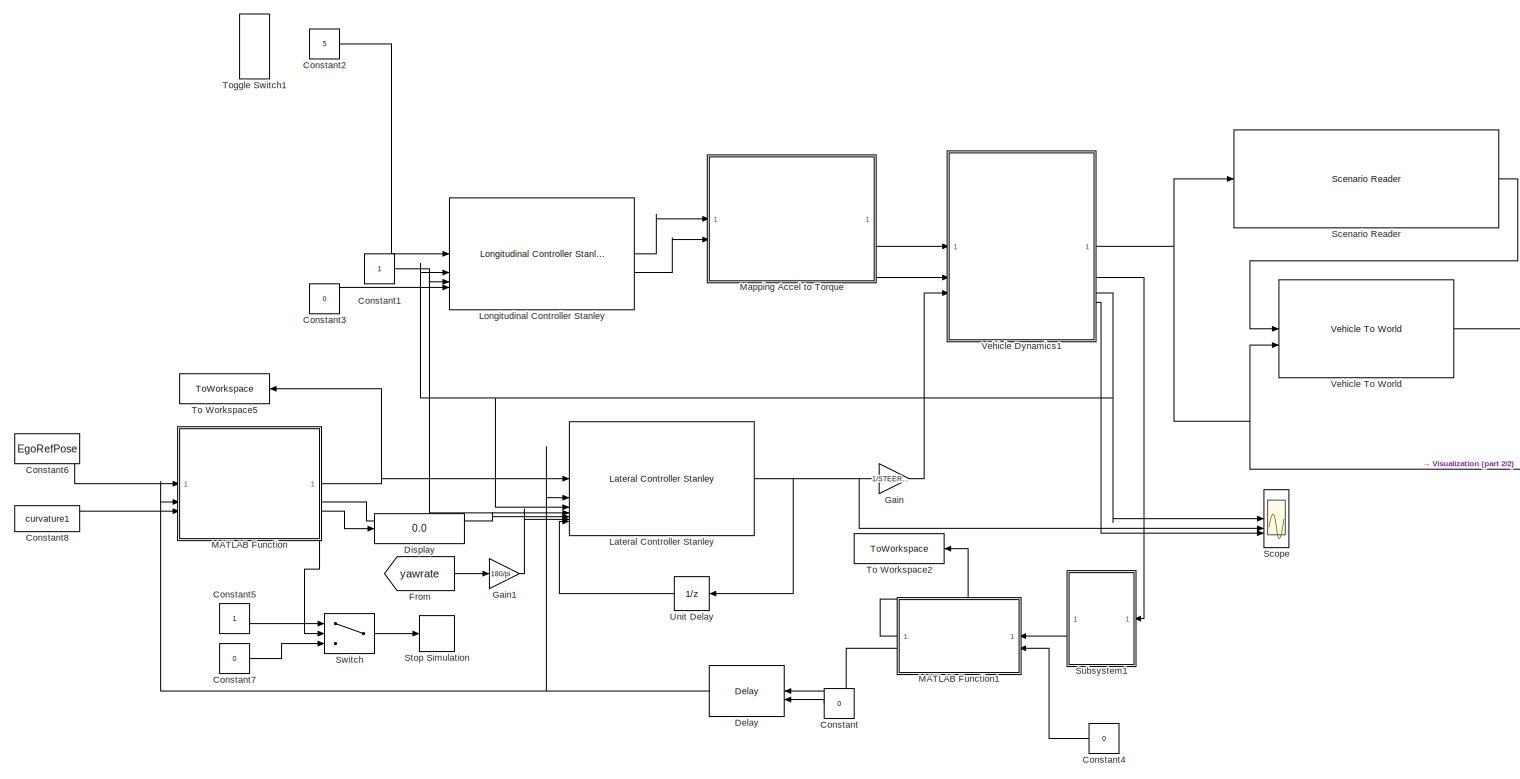
[diagram: root canvas - part 1/2, most of the canvas]
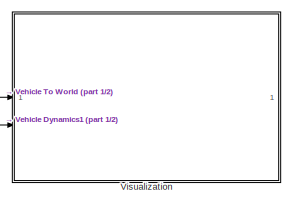
[diagram: root canvas - part 2/2, middle right region]
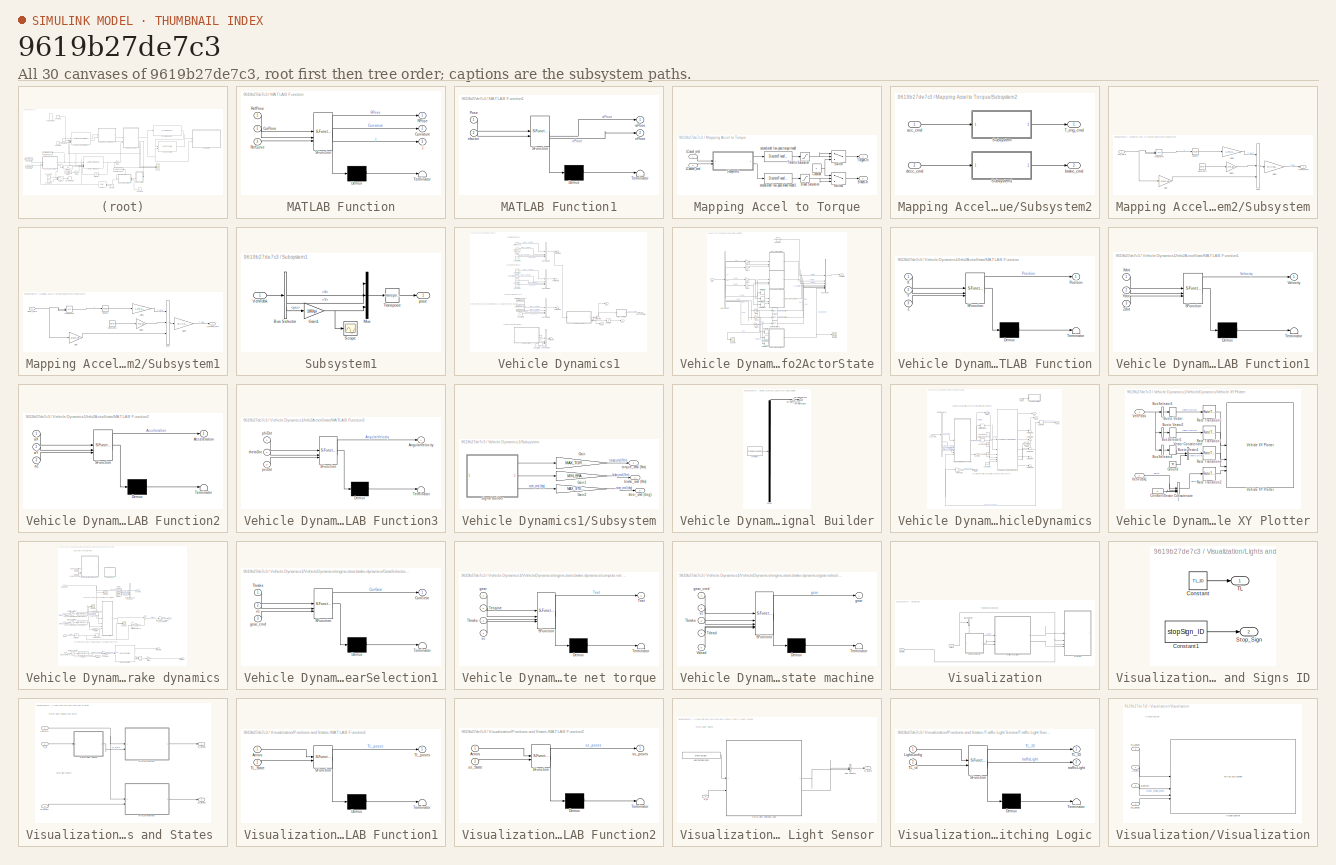
[diagram: thumbnail index - all 30 canvases of the model, root first then tree order]
MODEL slx_9619b27de7c3
KIND model
CONFIG AbsTol = auto
CONFIG EnableMultiTasking = off
CONFIG FixedStep = auto
CONFIG MaxStep = auto
CONFIG MinStep = auto
CONFIG RelTol = 1e-3
CONFIG SampleTimeConstraint = Unconstrained
CONFIG SolverName = VariableStepAuto
CONFIG StartTime = 0.0
CONFIG StopTime = inf
WORKSPACE source: mxarray member
WORKSPACE firstWarning = 1
WORKSPACE originalScenarioChecksum = '114339432DE22364D47BB28FC96DC10C'
BLOCK [Constant] Constant
  NameLocation = top
  Value = 0
BLOCK [Constant] Constant1
BLOCK [Constant] Constant2
  Value = 5
BLOCK [Constant] Constant3
  Value = 0
BLOCK [Constant] Constant4
  NameLocation = top
  Value = 0
BLOCK [Constant] Constant5
BLOCK [Constant] Constant6
  Value = EgoRefPose
BLOCK [Constant] Constant7
  Value = 0
BLOCK [Constant] Constant8
  Value = curvature1
BLOCK [Delay] Delay
  DelayLengthSource = Input port
  InputPortMap = u0,p1
  NameLocation = top
BLOCK [Display] Display
  Decimation = 1
BLOCK [From] From
  GotoTag = yawrate
  IconDisplay = Signal name
  TagVisibility = global
BLOCK [Gain] Gain
  Gain = 1/STEER_RATIO
BLOCK [Gain] Gain1
  Gain = 180/pi
BLOCK [Reference] Lateral Controller Stanley  REF=drivingvehiclecontroller/Lateral Controller Stanley
  SourceBlock = drivingvehiclecontroller/Lateral Controller Stanley
  SourceType = Lateral Controller Stanley
BLOCK [Reference] Longitudinal Controller Stanley  REF=drivingvehiclecontroller/Longitudinal Controller Stanley
  SourceBlock = drivingvehiclecontroller/Longitudinal Controller Stanley
  SourceType = Longitudinal Controller Stanley
BLOCK [SubSystem] MATLAB Function
  ErrorFcn = Stateflow.Translate.translate
  LibrarySourceBlock = simulink/User-Defined\nFunctions/MATLAB Function
  PermitHierarchicalResolution = ExplicitOnly
  SFBlockType = MATLAB Function
  TreatAsAtomicUnit = on
BLOCK [Demux] MATLAB Function/ Demux 
  Outputs = 1
BLOCK [S-Function] MATLAB Function/ SFunction 
  EnableBusSupport = on
  FunctionName = sf_sfun
  PortCounts = [3 4]
  SFcnIsStateOwnerBlock = off
  SFunctionDeploymentMode = off
  Tag = Stateflow S-Function 4
BLOCK [Terminator] MATLAB Function/ Terminator 
BLOCK [Inport] MATLAB Function/CurPose
  Port = 2
BLOCK [Outport] MATLAB Function/Curvature
  Port = 2
BLOCK [Outport] MATLAB Function/RPose
BLOCK [Inport] MATLAB Function/RefCurve
  Port = 3
BLOCK [Inport] MATLAB Function/RefPose
BLOCK [Outport] MATLAB Function/j
  Port = 3
BLOCK [SubSystem] MATLAB Function1
  ErrorFcn = Stateflow.Translate.translate
  LibrarySourceBlock = simulink/User-Defined\nFunctions/MATLAB Function
  NameLocation = top
  PermitHierarchicalResolution = ExplicitOnly
  SFBlockType = MATLAB Function
  TreatAsAtomicUnit = on
BLOCK [Demux] MATLAB Function1/ Demux 
  Outputs = 1
BLOCK [S-Function] MATLAB Function1/ SFunction 
  EnableBusSupport = on
  FunctionName = sf_sfun
  PortCounts = [2 3]
  SFcnIsStateOwnerBlock = off
  SFunctionDeploymentMode = off
  Tag = Stateflow S-Function 6
BLOCK [Terminator] MATLAB Function1/ Terminator 
BLOCK [Inport] MATLAB Function1/Pose
BLOCK [Outport] MATLAB Function1/aPose
BLOCK [Outport] MATLAB Function1/nPose
  Port = 2
BLOCK [Inport] MATLAB Function1/nfactor
  Port = 2
BLOCK [SubSystem] Mapping Accel to Torque
BLOCK [Saturate] Mapping Accel to Torque/Brake Saturation
  LowerLimit = MIN_BRAKE
  UpperLimit = MAX_BRAKE
BLOCK [Outport] Mapping Accel to Torque/BrakeCm
  Port = 2
BLOCK [Constant] Mapping Accel to Torque/Constant
  Value = 0
BLOCK [Inport] Mapping Accel to Torque/LCaccel_cmd
BLOCK [Inport] Mapping Accel to Torque/LCdeccel_cmd
  Port = 2
BLOCK [SubSystem] Mapping Accel to Torque/Subsystem2
BLOCK [SubSystem] Mapping Accel to Torque/Subsystem2/Subsystem
BLOCK [Constant] Mapping Accel to Torque/Subsystem2/Subsystem/Constant1
  Value = MCAR
BLOCK [Gain] Mapping Accel to Torque/Subsystem2/Subsystem/Gain
  Gain = 1.1*MCAR
BLOCK [Gain] Mapping Accel to Torque/Subsystem2/Subsystem/Gain1
  Gain = 1.2*0.3*2/2
BLOCK [Gain] Mapping Accel to Torque/Subsystem2/Subsystem/Gain2
  Gain = 0.7*9.81
BLOCK [Gain] Mapping Accel to Torque/Subsystem2/Subsystem/Gain4
  Gain = R/(7.05*0.8)
BLOCK [Integrator] Mapping Accel to Torque/Subsystem2/Subsystem/Integrator
  ExternalReset = falling
BLOCK [Math] Mapping Accel to Torque/Subsystem2/Subsystem/Square
  Operator = square
BLOCK [Sum] Mapping Accel to Torque/Subsystem2/Subsystem/Sum
  IconShape = rectangular
  Inputs = +++
BLOCK [Outport] Mapping Accel to Torque/Subsystem2/Subsystem/T_eng_cmd
BLOCK [Inport] Mapping Accel to Torque/Subsystem2/Subsystem/acc_cmd
BLOCK [SubSystem] Mapping Accel to Torque/Subsystem2/Subsystem1
BLOCK [Constant] Mapping Accel to Torque/Subsystem2/Subsystem1/Constant1
  Value = MCAR
BLOCK [Gain] Mapping Accel to Torque/Subsystem2/Subsystem1/Gain
  Gain = 1.1*MCAR
BLOCK [Gain] Mapping Accel to Torque/Subsystem2/Subsystem1/Gain1
  Gain = 1.2*0.3*2/2
BLOCK [Gain] Mapping Accel to Torque/Subsystem2/Subsystem1/Gain2
  Gain = 0.7*9.81
BLOCK [Gain] Mapping Accel to Torque/Subsystem2/Subsystem1/Gain4
  Gain = -R/(7.05*0.8)
BLOCK [Integrator] Mapping Accel to Torque/Subsystem2/Subsystem1/Integrator
  ExternalReset = falling
BLOCK [Math] Mapping Accel to Torque/Subsystem2/Subsystem1/Square
  Operator = square
BLOCK [Sum] Mapping Accel to Torque/Subsystem2/Subsystem1/Sum
  IconShape = rectangular
  Inputs = +++
BLOCK [Outport] Mapping Accel to Torque/Subsystem2/Subsystem1/T_brake_cmd
BLOCK [Inport] Mapping Accel to Torque/Subsystem2/Subsystem1/decc_cmd
BLOCK [Outport] Mapping Accel to Torque/Subsystem2/T_eng_cmd
BLOCK [Inport] Mapping Accel to Torque/Subsystem2/acc_cmd
BLOCK [Outport] Mapping Accel to Torque/Subsystem2/brake_cmd
  Port = 2
BLOCK [Inport] Mapping Accel to Torque/Subsystem2/decc_cmd
  Port = 2
BLOCK [Switch] Mapping Accel to Torque/Switch
  Criteria = u2 > Threshold
  InputSameDT = off
  SaturateOnIntegerOverflow = off
BLOCK [Switch] Mapping Accel to Torque/Switch1
  Criteria = u2 > Threshold
  InputSameDT = off
  SaturateOnIntegerOverflow = off
BLOCK [Saturate] Mapping Accel to Torque/Throttle Saturation
  LowerLimit = MIN_TORQUE
  UpperLimit = MAX_TORQUE
BLOCK [Outport] Mapping Accel to Torque/TorgueCm
BLOCK [DiscreteTransferFcn] Mapping Accel to Torque/second-order low-pass brake model1
  Commented = through
  Denominator = NUMD_B
  InputPortMap = u0
  Numerator = DEND_B
  SampleTime = ts
BLOCK [DiscreteTransferFcn] Mapping Accel to Torque/second-order low-pass torque model
  Commented = through
  Denominator = NUMD_T
  InputPortMap = u0
  Numerator = DEND_T
  SampleTime = ts
BLOCK [Reference] Scenario Reader  REF=drivingscenarioandsensors/Scenario Reader
  SourceBlock = drivingscenarioandsensors/Scenario Reader
  SourceType = driving.scenario.internal.ScenarioReader
BLOCK [Scope] Scope
  Floating = off
  NumInputPorts = 3
  ScopeSpecificationString = Simulink.scopes.TimeScopeBlockCfg('CurrentConfiguration', extmgr.ConfigurationSet(extmgr.Configuration('Core','General UI',true),extmgr.Configuration('Core','Source UI',true),extmgr.Configuration('Sources','WiredSimulink',true,'DataLoggingVariableName','ScopeData1'),extmgr.Configuration('Visuals','Time Domain',true,'SerializedDisplays',{struct('MinYLimReal','-1.65936','MaxYLimReal','8.00548','YLab...<+1514ch>
BLOCK [Stop] Stop Simulation
BLOCK [SubSystem] Subsystem1
  NameLocation = top
BLOCK [BusSelector] Subsystem1/Bus Selector
  OutputSignals = InertFrm.Cg.Disp.X,InertFrm.Cg.Disp.Y,InertFrm.Cg.Ang.psi
BLOCK [Gain] Subsystem1/Gain1
  Gain = 180/pi
BLOCK [Mux] Subsystem1/Mux
  DisplayOption = bar
  Inputs = 3
BLOCK [Scope] Subsystem1/Scope
  Floating = off
  NumInputPorts = 1
  ScopeSpecificationString = Simulink.scopes.TimeScopeBlockCfg('CurrentConfiguration', extmgr.ConfigurationSet(extmgr.Configuration('Core','General UI',true),extmgr.Configuration('Core','Source UI',true),extmgr.Configuration('Sources','WiredSimulink',true,'DataLoggingVariableName','ScopeData1'),extmgr.Configuration('Visuals','Time Domain',true,'SerializedDisplays',{struct('MinYLimReal','-12.11983','MaxYLimReal','109.07818','Y...<+1399ch>
BLOCK [Math] Subsystem1/Transpose
  Operator = transpose
  SignedPower = on
BLOCK [Inport] Subsystem1/VehFdbk
BLOCK [Outport] Subsystem1/pose
BLOCK [Switch] Switch
  InputSameDT = off
  SaturateOnIntegerOverflow = off
  Threshold = length(EgoRefPose)
BLOCK [ToWorkspace] To Workspace2
  FixptAsFi = on
  MaxDataPoints = inf
  NameLocation = top
  SampleTime = -1
  Save2DSignal = 2-D array (concatenate along first dimension)
  VariableName = EgoPose1
BLOCK [ToWorkspace] To Workspace5
  FixptAsFi = on
  MaxDataPoints = inf
  NameLocation = top
  SampleTime = -1
  Save2DSignal = 2-D array (concatenate along first dimension)
  VariableName = RefPoseSim
BLOCK [ToggleSwitchBlock] Toggle Switch1
BLOCK [UnitDelay] Unit Delay
  HasFrameUpgradeWarning = on
  NameLocation = top
  SampleTime = -1
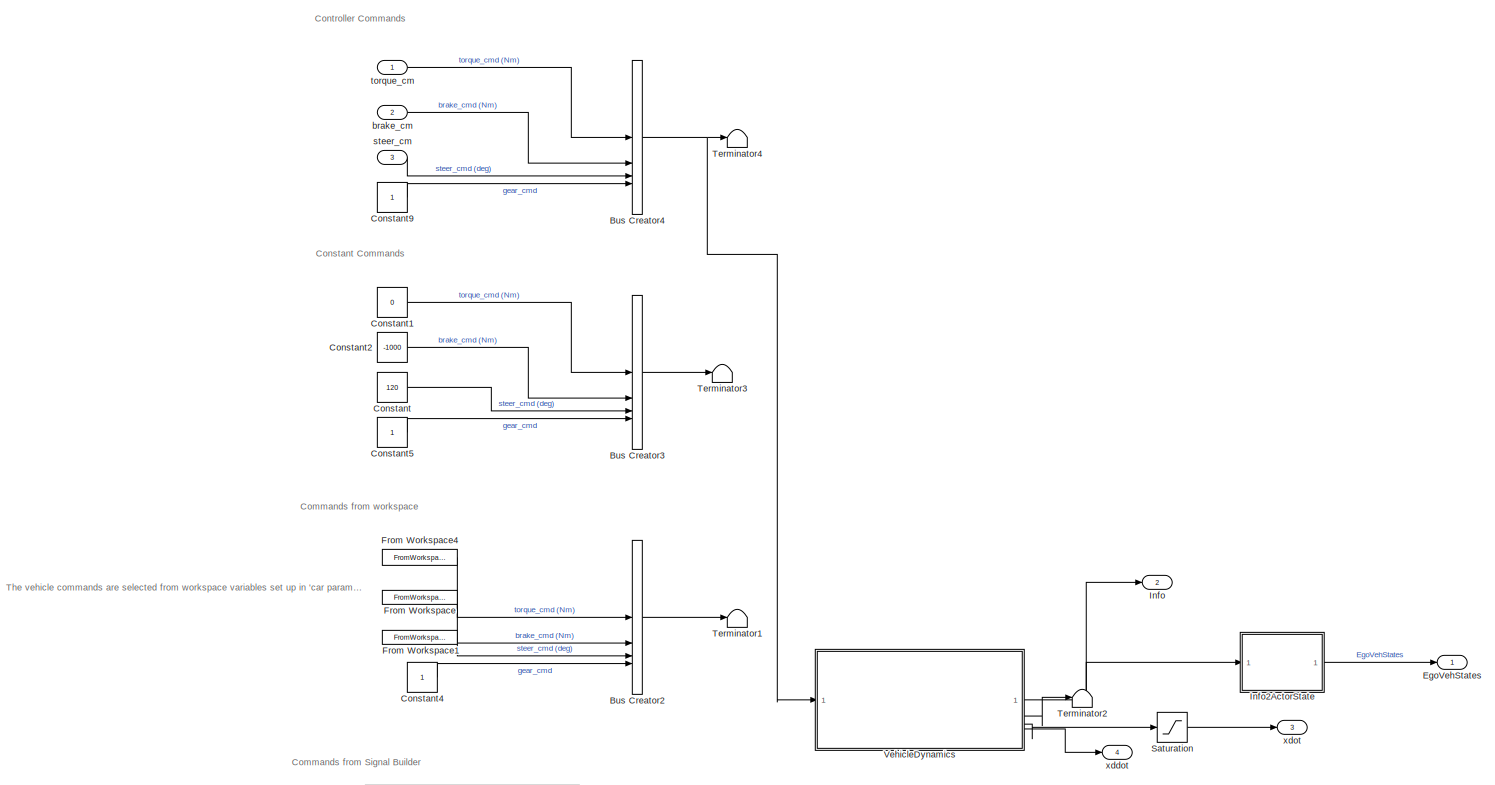
[diagram: Vehicle Dynamics1 - part 1/2, most of the canvas]
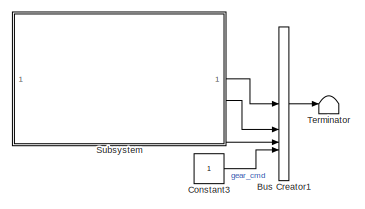
[diagram: Vehicle Dynamics1 - part 2/2, bottom center region]
BLOCK [SubSystem] Vehicle Dynamics1
BLOCK [BusCreator] Vehicle Dynamics1/Bus Creator1
  DisplayOption = bar
  InheritFromInputs = on
  Inputs = 4
BLOCK [BusCreator] Vehicle Dynamics1/Bus Creator2
  DisplayOption = bar
  InheritFromInputs = on
  Inputs = 4
BLOCK [BusCreator] Vehicle Dynamics1/Bus Creator3
  DisplayOption = bar
  InheritFromInputs = on
  Inputs = 4
BLOCK [BusCreator] Vehicle Dynamics1/Bus Creator4
  DisplayOption = bar
  InheritFromInputs = on
  Inputs = 4
BLOCK [Constant] Vehicle Dynamics1/Constant
  Value = 120
BLOCK [Constant] Vehicle Dynamics1/Constant1
  Value = 0
BLOCK [Constant] Vehicle Dynamics1/Constant2
  Value = -1000
BLOCK [Constant] Vehicle Dynamics1/Constant3
BLOCK [Constant] Vehicle Dynamics1/Constant4
BLOCK [Constant] Vehicle Dynamics1/Constant5
BLOCK [Constant] Vehicle Dynamics1/Constant9
BLOCK [Outport] Vehicle Dynamics1/EgoVehStates
BLOCK [FromWorkspace] Vehicle Dynamics1/From Workspace
  SampleTime = ts
  VariableName = BRAKE_CMD
BLOCK [FromWorkspace] Vehicle Dynamics1/From Workspace1
  SampleTime = ts
  VariableName = STEER_CMD
BLOCK [FromWorkspace] Vehicle Dynamics1/From Workspace4
  SampleTime = ts
  VariableName = TORQUE_CMD
BLOCK [Outport] Vehicle Dynamics1/Info
  Port = 2
BLOCK [SubSystem] Vehicle Dynamics1/Info2ActorState
BLOCK [Outport] Vehicle Dynamics1/Info2ActorState/ActorState
BLOCK [BusCreator] Vehicle Dynamics1/Info2ActorState/Bus Creator
  DisplayOption = bar
  InheritFromInputs = on
  Inputs = ActorID,Position,Velocity,Acceleration,Roll,Pitch,Yaw,AngularVelocity
  NonVirtualBus = on
  OutDataTypeStr = Bus: BusActorState
BLOCK [BusSelector] Vehicle Dynamics1/Info2ActorState/Bus Selector
  OutputSignals = InertFrm.Cg.Disp.X,InertFrm.Cg.Disp.Y,InertFrm.Cg.Disp.Z,InertFrm.Cg.Vel.Xdot,InertFrm.Cg.Vel.Ydot,InertFrm.Cg.Vel.Zdot,InertFrm.Cg.Ang.phi,InertFrm.Cg.Ang.theta,InertFrm.Cg.Ang.psi
BLOCK [Constant] Vehicle Dynamics1/Info2ActorState/Constant
  SampleTime = 0.05
  Value = session.data.EgoCarId
BLOCK [Derivative] Vehicle Dynamics1/Info2ActorState/Derivative
BLOCK [Derivative] Vehicle Dynamics1/Info2ActorState/Derivative1
BLOCK [Derivative] Vehicle Dynamics1/Info2ActorState/Derivative2
BLOCK [Derivative] Vehicle Dynamics1/Info2ActorState/Derivative3
BLOCK [Derivative] Vehicle Dynamics1/Info2ActorState/Derivative4
BLOCK [Derivative] Vehicle Dynamics1/Info2ActorState/Derivative5
BLOCK [Gain] Vehicle Dynamics1/Info2ActorState/Gain
  Gain = -180/pi
BLOCK [Gain] Vehicle Dynamics1/Info2ActorState/Gain1
  Gain = -180/pi
BLOCK [Gain] Vehicle Dynamics1/Info2ActorState/Gain2
  Gain = -180/pi
BLOCK [Gain] Vehicle Dynamics1/Info2ActorState/Gain3
  Gain = -1
BLOCK [Gain] Vehicle Dynamics1/Info2ActorState/Gain4
  Gain = -1
BLOCK [Gain] Vehicle Dynamics1/Info2ActorState/Gain5
  Gain = -1
BLOCK [Gain] Vehicle Dynamics1/Info2ActorState/Gain6
  Gain = -1
BLOCK [Inport] Vehicle Dynamics1/Info2ActorState/Info
BLOCK [SubSystem] Vehicle Dynamics1/Info2ActorState/MATLAB Function
  ErrorFcn = Stateflow.Translate.translate
  PermitHierarchicalResolution = ExplicitOnly
  SFBlockType = MATLAB Function
  SystemSampleTime = 0.05
  TreatAsAtomicUnit = on
BLOCK [Demux] Vehicle Dynamics1/Info2ActorState/MATLAB Function/ Demux 
  Outputs = 1
BLOCK [S-Function] Vehicle Dynamics1/Info2ActorState/MATLAB Function/ SFunction 
  EnableBusSupport = on
  FunctionName = sf_sfun
  PortCounts = [3 2]
  SFcnIsStateOwnerBlock = off
  SFunctionDeploymentMode = off
  Tag = Stateflow S-Function 5
BLOCK [Terminator] Vehicle Dynamics1/Info2ActorState/MATLAB Function/ Terminator 
BLOCK [Outport] Vehicle Dynamics1/Info2ActorState/MATLAB Function/Position
BLOCK [Inport] Vehicle Dynamics1/Info2ActorState/MATLAB Function/X
BLOCK [Inport] Vehicle Dynamics1/Info2ActorState/MATLAB Function/Y
  Port = 2
BLOCK [Inport] Vehicle Dynamics1/Info2ActorState/MATLAB Function/Z
  Port = 3
BLOCK [SubSystem] Vehicle Dynamics1/Info2ActorState/MATLAB Function1
  ErrorFcn = Stateflow.Translate.translate
  PermitHierarchicalResolution = ExplicitOnly
  SFBlockType = MATLAB Function
  SystemSampleTime = 0.05
  TreatAsAtomicUnit = on
BLOCK [Demux] Vehicle Dynamics1/Info2ActorState/MATLAB Function1/ Demux 
  Outputs = 1
BLOCK [S-Function] Vehicle Dynamics1/Info2ActorState/MATLAB Function1/ SFunction 
  EnableBusSupport = on
  FunctionName = sf_sfun
  PortCounts = [3 2]
  SFcnIsStateOwnerBlock = off
  SFunctionDeploymentMode = off
  Tag = Stateflow S-Function 12
BLOCK [Terminator] Vehicle Dynamics1/Info2ActorState/MATLAB Function1/ Terminator 
BLOCK [Outport] Vehicle Dynamics1/Info2ActorState/MATLAB Function1/Velocity
BLOCK [Inport] Vehicle Dynamics1/Info2ActorState/MATLAB Function1/Xdot
BLOCK [Inport] Vehicle Dynamics1/Info2ActorState/MATLAB Function1/Ydot
  Port = 2
BLOCK [Inport] Vehicle Dynamics1/Info2ActorState/MATLAB Function1/Zdot
  Port = 3
BLOCK [SubSystem] Vehicle Dynamics1/Info2ActorState/MATLAB Function2
  ErrorFcn = Stateflow.Translate.translate
  PermitHierarchicalResolution = ExplicitOnly
  SFBlockType = MATLAB Function
  SystemSampleTime = 0.05
  TreatAsAtomicUnit = on
BLOCK [Demux] Vehicle Dynamics1/Info2ActorState/MATLAB Function2/ Demux 
  Outputs = 1
BLOCK [S-Function] Vehicle Dynamics1/Info2ActorState/MATLAB Function2/ SFunction 
  EnableBusSupport = on
  FunctionName = sf_sfun
  PortCounts = [3 2]
  SFcnIsStateOwnerBlock = off
  SFunctionDeploymentMode = off
  Tag = Stateflow S-Function 15
BLOCK [Terminator] Vehicle Dynamics1/Info2ActorState/MATLAB Function2/ Terminator 
BLOCK [Outport] Vehicle Dynamics1/Info2ActorState/MATLAB Function2/Acceleration
BLOCK [Inport] Vehicle Dynamics1/Info2ActorState/MATLAB Function2/aX
BLOCK [Inport] Vehicle Dynamics1/Info2ActorState/MATLAB Function2/aY
  Port = 2
BLOCK [Inport] Vehicle Dynamics1/Info2ActorState/MATLAB Function2/aZ
  Port = 3
BLOCK [SubSystem] Vehicle Dynamics1/Info2ActorState/MATLAB Function3
  ErrorFcn = Stateflow.Translate.translate
  PermitHierarchicalResolution = ExplicitOnly
  SFBlockType = MATLAB Function
  SystemSampleTime = 0.05
  TreatAsAtomicUnit = on
BLOCK [Demux] Vehicle Dynamics1/Info2ActorState/MATLAB Function3/ Demux 
  Outputs = 1
BLOCK [S-Function] Vehicle Dynamics1/Info2ActorState/MATLAB Function3/ SFunction 
  EnableBusSupport = on
  FunctionName = sf_sfun
  PortCounts = [3 2]
  SFcnIsStateOwnerBlock = off
  SFunctionDeploymentMode = off
  Tag = Stateflow S-Function 16
BLOCK [Terminator] Vehicle Dynamics1/Info2ActorState/MATLAB Function3/ Terminator 
BLOCK [Outport] Vehicle Dynamics1/Info2ActorState/MATLAB Function3/AngularVelocity
BLOCK [Inport] Vehicle Dynamics1/Info2ActorState/MATLAB Function3/phiDot
BLOCK [Inport] Vehicle Dynamics1/Info2ActorState/MATLAB Function3/psiDot
  Port = 3
BLOCK [Inport] Vehicle Dynamics1/Info2ActorState/MATLAB Function3/thetaDot
  Port = 2
BLOCK [RateTransition] Vehicle Dynamics1/Info2ActorState/Rate Transition
  OutPortSampleTime = 0.05
BLOCK [RateTransition] Vehicle Dynamics1/Info2ActorState/Rate Transition1
  OutPortSampleTime = 0.05
BLOCK [RateTransition] Vehicle Dynamics1/Info2ActorState/Rate Transition2
  OutPortSampleTime = 0.05
BLOCK [Scope] Vehicle Dynamics1/Info2ActorState/Scope
  Floating = off
  NumInputPorts = 1
  ScopeSpecificationString = Simulink.scopes.TimeScopeBlockCfg('CurrentConfiguration', extmgr.ConfigurationSet(extmgr.Configuration('Core','General UI',true),extmgr.Configuration('Core','Source UI',true),extmgr.Configuration('Sources','WiredSimulink',true,'DataLoggingVariableName','ScopeData1'),extmgr.Configuration('Visuals','Time Domain',true,'SerializedDisplays',{struct('MinYLimReal','-1.00000','MaxYLimReal','1.00000','YLab...<+1416ch>
BLOCK [Scope] Vehicle Dynamics1/Info2ActorState/Scope1
  Floating = off
  NumInputPorts = 1
  ScopeSpecificationString = Simulink.scopes.TimeScopeBlockCfg('CurrentConfiguration', extmgr.ConfigurationSet(extmgr.Configuration('Core','General UI',true),extmgr.Configuration('Core','Source UI',true),extmgr.Configuration('Sources','WiredSimulink',true,'DataLoggingVariableName','ScopeData2'),extmgr.Configuration('Visuals','Time Domain',true),extmgr.Configuration('Tools','Plot Navigation',true),extmgr.Configuration('Tools',...<+40ch>
BLOCK [Saturate] Vehicle Dynamics1/Saturation
  LowerLimit = 0.001
  UpperLimit = inf
BLOCK [SubSystem] Vehicle Dynamics1/Subsystem
  Commented = on
BLOCK [Gain] Vehicle Dynamics1/Subsystem/Gain
  Gain = MAX_TORQUE*0.1
BLOCK [Gain] Vehicle Dynamics1/Subsystem/Gain1
  Gain = MIN_BRAKE*0.06
BLOCK [Gain] Vehicle Dynamics1/Subsystem/Gain2
  Gain = MAX_STEER/4.5
BLOCK [SubSystem] Vehicle Dynamics1/Subsystem/Signal Builder
  ClipboardFcn = sigbuilder_block('clipboard');
  CloseFcn = sigbuilder_block('close');
  ContinueFcn = sigbuilder_block('continue');
  CopyFcn = sigbuilder_block('copy');
  DeleteFcn = sigbuilder_block('delete');
  LoadFcn = sigbuilder_block('load');
  MaskHideContents = on
  ModelCloseFcn = sigbuilder_block('modelClose');
  NameChangeFcn = sigbuilder_block('namechange');
  OpenFcn = sigbuilder_block('open',[0 30 960 455.5 ]);
  PauseFcn = sigbuilder_block('pause');
  PreSaveFcn = sigbuilder_block('preSave');
  StartFcn = sigbuilder_block('start');
  StopFcn = sigbuilder_block('stop');
  Tag = STV Subsys
BLOCK [Demux] Vehicle Dynamics1/Subsystem/Signal Builder/Demux
  DisplayOption = none
  Outputs = 3
  Tag = STV Demux
BLOCK [FromWorkspace] Vehicle Dynamics1/Subsystem/Signal Builder/FromWs
  Tag = STV FromWs
  VariableName = tuvar
BLOCK [Outport] Vehicle Dynamics1/Subsystem/Signal Builder/Normalized Brake
  Port = 2
  Tag = STV Outport
BLOCK [Outport] Vehicle Dynamics1/Subsystem/Signal Builder/Normalized Steer
  Port = 3
  Tag = STV Outport
BLOCK [Outport] Vehicle Dynamics1/Subsystem/Signal Builder/Normalized Torque
  Tag = STV Outport
BLOCK [Outport] Vehicle Dynamics1/Subsystem/brake_cmd (Nm)
  Port = 2
BLOCK [Outport] Vehicle Dynamics1/Subsystem/steer_cmd (deg)
  Port = 3
BLOCK [Outport] Vehicle Dynamics1/Subsystem/torque_cmd (Nm)
BLOCK [Terminator] Vehicle Dynamics1/Terminator
BLOCK [Terminator] Vehicle Dynamics1/Terminator1
BLOCK [Terminator] Vehicle Dynamics1/Terminator2
BLOCK [Terminator] Vehicle Dynamics1/Terminator3
BLOCK [Terminator] Vehicle Dynamics1/Terminator4
BLOCK [SubSystem] Vehicle Dynamics1/VehicleDynamics
BLOCK [Inport] Vehicle Dynamics1/VehicleDynamics/CAN_cmd
BLOCK [Outport] Vehicle Dynamics1/VehicleDynamics/CAN_fbk
  Port = 2
  VectorParamsAs1DForOutWhenUnconnected = off
BLOCK [Constant] Vehicle Dynamics1/VehicleDynamics/Constant1
  Value = InitPosition(1)
BLOCK [Constant] Vehicle Dynamics1/VehicleDynamics/Constant2
  Value = 0
BLOCK [Constant] Vehicle Dynamics1/VehicleDynamics/Constant3
  Value = InitPosition(2)
BLOCK [Constant] Vehicle Dynamics1/VehicleDynamics/Constant4
  Value = psi_o
BLOCK [Derivative] Vehicle Dynamics1/VehicleDynamics/Derivative
BLOCK [FirstOrderHold] Vehicle Dynamics1/VehicleDynamics/First Order Hold
  ErrorTolerance = inf
BLOCK [FirstOrderHold] Vehicle Dynamics1/VehicleDynamics/First Order Hold1
  ErrorTolerance = inf
BLOCK [From] Vehicle Dynamics1/VehicleDynamics/From1
  Commented = on
  GotoTag = delta
BLOCK [Goto] Vehicle Dynamics1/VehicleDynamics/Goto
  Commented = on
  GotoTag = omega
BLOCK [Goto] Vehicle Dynamics1/VehicleDynamics/Goto1
  Commented = on
  GotoTag = delta
BLOCK [Goto] Vehicle Dynamics1/VehicleDynamics/Goto2
  GotoTag = yawrate
  TagVisibility = global
BLOCK [Outport] Vehicle Dynamics1/VehicleDynamics/Info
BLOCK [Terminator] Vehicle Dynamics1/VehicleDynamics/Terminator1
BLOCK [Terminator] Vehicle Dynamics1/VehicleDynamics/Terminator2
BLOCK [Terminator] Vehicle Dynamics1/VehicleDynamics/Terminator3
BLOCK [Terminator] Vehicle Dynamics1/VehicleDynamics/Terminator4
BLOCK [Terminator] Vehicle Dynamics1/VehicleDynamics/Terminator5
BLOCK [Gain] Vehicle Dynamics1/VehicleDynamics/TireRadius
  Gain = R
BLOCK [Reference] Vehicle Dynamics1/VehicleDynamics/Vehicle Body 3DOF Single Track  REF=autolibshared/Vehicle Body 3DOF Single Track
  SourceBlock = autolibshared/Vehicle Body 3DOF Single Track
  SourceType = Vehicle Body 3DOF Lateral
BLOCK [SubSystem] Vehicle Dynamics1/VehicleDynamics/Vehicle XY Plotter
  Commented = on
BLOCK [BusSelector] Vehicle Dynamics1/VehicleDynamics/Vehicle XY Plotter/Bus Selector1
  OutputAsBus = on
  OutputSignals = InertFrm.Cg.Ang.phi,InertFrm.Cg.Ang.theta,InertFrm.Cg.Ang.psi
BLOCK [BusSelector] Vehicle Dynamics1/VehicleDynamics/Vehicle XY Plotter/Bus Selector3
  OutputAsBus = on
  OutputSignals = InertFrm.Geom.Disp.X,InertFrm.Geom.Disp.Y,InertFrm.Geom.Disp.Z
BLOCK [BusSelector] Vehicle Dynamics1/VehicleDynamics/Vehicle XY Plotter/Bus Selector4
  OutputAsBus = on
  OutputSignals = InertFrm.Cg.Vel.Xdot,InertFrm.Cg.Vel.Ydot
BLOCK [BusToVector] Vehicle Dynamics1/VehicleDynamics/Vehicle XY Plotter/Bus to Vector
BLOCK [BusToVector] Vehicle Dynamics1/VehicleDynamics/Vehicle XY Plotter/Bus to Vector1
BLOCK [BusToVector] Vehicle Dynamics1/VehicleDynamics/Vehicle XY Plotter/Bus to Vector2
BLOCK [Constant] Vehicle Dynamics1/VehicleDynamics/Vehicle XY Plotter/Constant4
  Value = 0
BLOCK [Ground] Vehicle Dynamics1/VehicleDynamics/Vehicle XY Plotter/Ground
BLOCK [RateTransition] Vehicle Dynamics1/VehicleDynamics/Vehicle XY Plotter/Rate Transition1
  OutPortSampleTime = pltDT
BLOCK [RateTransition] Vehicle Dynamics1/VehicleDynamics/Vehicle XY Plotter/Rate Transition2
  OutPortSampleTime = pltDT
BLOCK [RateTransition] Vehicle Dynamics1/VehicleDynamics/Vehicle XY Plotter/Rate Transition5
  OutPortSampleTime = pltDT
BLOCK [RateTransition] Vehicle Dynamics1/VehicleDynamics/Vehicle XY Plotter/Rate Transition6
  OutPortSampleTime = pltDT
BLOCK [Concatenate] Vehicle Dynamics1/VehicleDynamics/Vehicle XY Plotter/Vector Concatenate
BLOCK [Concatenate] Vehicle Dynamics1/VehicleDynamics/Vehicle XY Plotter/Vector Concatenate1
  NumInputs = 4
BLOCK [Inport] Vehicle Dynamics1/VehicleDynamics/Vehicle XY Plotter/VehFdbk
BLOCK [Inport] Vehicle Dynamics1/VehicleDynamics/Vehicle XY Plotter/VehFdbk1
  Port = 2
BLOCK [Reference] Vehicle Dynamics1/VehicleDynamics/Vehicle XY Plotter/Vehicle XY Plotter  REF=vehdynlibviscommon/Vehicle XY Plotter
  SourceBlock = vehdynlibviscommon/Vehicle XY Plotter
  SourceType = Vehicle XY Plotter
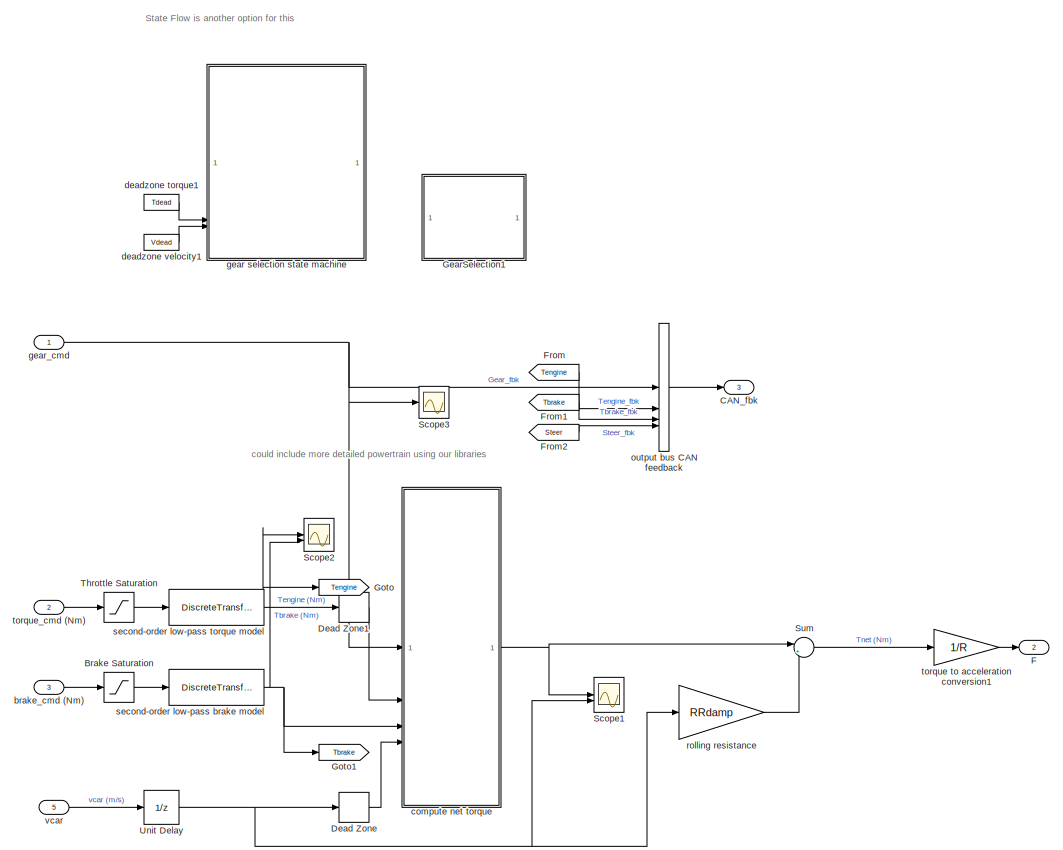
[diagram: Vehicle Dynamics1/VehicleDynamics/engine-steer-brake dynamics - part 1/2, most of the canvas]
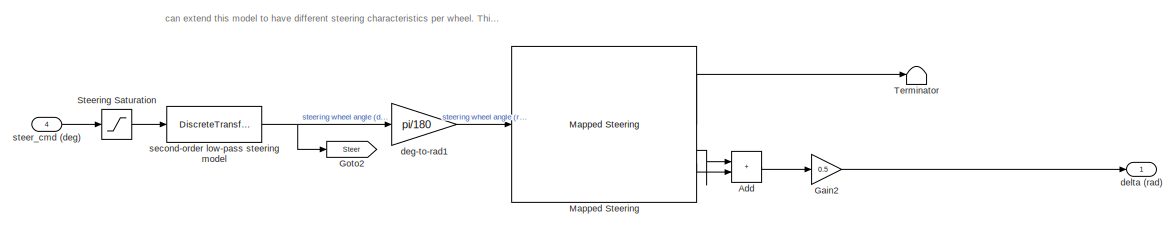
[diagram: Vehicle Dynamics1/VehicleDynamics/engine-steer-brake dynamics - part 2/2, full width, bottom band]
BLOCK [SubSystem] Vehicle Dynamics1/VehicleDynamics/engine-steer-brake dynamics
BLOCK [Sum] Vehicle Dynamics1/VehicleDynamics/engine-steer-brake dynamics/Add
  IconShape = rectangular
BLOCK [Saturate] Vehicle Dynamics1/VehicleDynamics/engine-steer-brake dynamics/Brake Saturation
  LowerLimit = MIN_BRAKE
  UpperLimit = MAX_BRAKE
BLOCK [Outport] Vehicle Dynamics1/VehicleDynamics/engine-steer-brake dynamics/CAN_fbk
  Port = 3
  VectorParamsAs1DForOutWhenUnconnected = off
BLOCK [DeadZone] Vehicle Dynamics1/VehicleDynamics/engine-steer-brake dynamics/Dead Zone
  LowerValue = -Vdead
  UpperValue = Vdead
BLOCK [DeadZone] Vehicle Dynamics1/VehicleDynamics/engine-steer-brake dynamics/Dead Zone1
  LowerValue = -Tdead
  UpperValue = Tdead
BLOCK [Outport] Vehicle Dynamics1/VehicleDynamics/engine-steer-brake dynamics/F
  Port = 2
  VectorParamsAs1DForOutWhenUnconnected = off
BLOCK [From] Vehicle Dynamics1/VehicleDynamics/engine-steer-brake dynamics/From
  GotoTag = Tengine
BLOCK [From] Vehicle Dynamics1/VehicleDynamics/engine-steer-brake dynamics/From1
  GotoTag = Tbrake
BLOCK [From] Vehicle Dynamics1/VehicleDynamics/engine-steer-brake dynamics/From2
  GotoTag = Steer
BLOCK [Gain] Vehicle Dynamics1/VehicleDynamics/engine-steer-brake dynamics/Gain2
  Gain = 0.5
BLOCK [SubSystem] Vehicle Dynamics1/VehicleDynamics/engine-steer-brake dynamics/GearSelection1
  Commented = on
  ErrorFcn = Stateflow.Translate.translate
  PermitHierarchicalResolution = ExplicitOnly
  PortSchema = {"entries":[{"content":{"sides":[{"content":{"connectorIds":["In3","In2","In1"]},"type":"ConnectorPlacement.EquallySpacedRectSide","uuid":"465e5722-891f-481b-b3b6-2b8339e8e743"},{"content":{"connectorIds":["Out1"],"side":"RIGHT"},"type":"ConnectorPlacement.EquallySpacedRectSide","uuid":"28ef13cd-41d9-4e2e-8cd9-9157abf573a9"},{"content":{"connectorIds":[],"side":"TOP"},"type":"ConnectorPlacement.Eq...<+396ch>
  SFBlockType = Chart
  SystemSampleTime = ts
  TreatAsAtomicUnit = on
BLOCK [Demux] Vehicle Dynamics1/VehicleDynamics/engine-steer-brake dynamics/GearSelection1/ Demux 
  Outputs = 1
BLOCK [S-Function] Vehicle Dynamics1/VehicleDynamics/engine-steer-brake dynamics/GearSelection1/ SFunction 
  EnableBusSupport = on
  FunctionName = sf_sfun
  Parameters = DefaultGear,Tdead,Vdead
  PortCounts = [3 2]
  SFcnIsStateOwnerBlock = off
  SFunctionDeploymentMode = off
  Tag = Stateflow S-Function 17
BLOCK [Terminator] Vehicle Dynamics1/VehicleDynamics/engine-steer-brake dynamics/GearSelection1/ Terminator 
BLOCK [Outport] Vehicle Dynamics1/VehicleDynamics/engine-steer-brake dynamics/GearSelection1/CurrGear
BLOCK [Inport] Vehicle Dynamics1/VehicleDynamics/engine-steer-brake dynamics/GearSelection1/Tbrake
BLOCK [Inport] Vehicle Dynamics1/VehicleDynamics/engine-steer-brake dynamics/GearSelection1/gear_cmd
  Port = 3
BLOCK [Inport] Vehicle Dynamics1/VehicleDynamics/engine-steer-brake dynamics/GearSelection1/vc
  Port = 2
BLOCK [Goto] Vehicle Dynamics1/VehicleDynamics/engine-steer-brake dynamics/Goto
  GotoTag = Tengine
BLOCK [Goto] Vehicle Dynamics1/VehicleDynamics/engine-steer-brake dynamics/Goto1
  GotoTag = Tbrake
BLOCK [Goto] Vehicle Dynamics1/VehicleDynamics/engine-steer-brake dynamics/Goto2
  GotoTag = Steer
BLOCK [Reference] Vehicle Dynamics1/VehicleDynamics/engine-steer-brake dynamics/Mapped Steering  REF=vehdynlibsteering/Mapped Steering
  SourceBlock = vehdynlibsteering/Mapped Steering
  SourceType = Mapped Steering
BLOCK [Scope] Vehicle Dynamics1/VehicleDynamics/engine-steer-brake dynamics/Scope1
  Floating = off
  NumInputPorts = 2
  ScopeSpecificationString = Simulink.scopes.TimeScopeBlockCfg('CurrentConfiguration', extmgr.ConfigurationSet(extmgr.Configuration('Core','General UI',true),extmgr.Configuration('Core','Source UI',true),extmgr.Configuration('Sources','WiredSimulink',true,'DataLoggingVariableName','ScopeData3'),extmgr.Configuration('Visuals','Time Domain',true,'SerializedDisplays',{struct('MinYLimReal','-4915.04892','MaxYLimReal','4915.04453'...<+2339ch>
BLOCK [Scope] Vehicle Dynamics1/VehicleDynamics/engine-steer-brake dynamics/Scope2
  Floating = off
  NumInputPorts = 2
  ScopeSpecificationString = Simulink.scopes.TimeScopeBlockCfg('CurrentConfiguration', extmgr.ConfigurationSet(extmgr.Configuration('Core','General UI',true),extmgr.Configuration('Core','Source UI',true),extmgr.Configuration('Sources','WiredSimulink',true,'DataLoggingVariableName','ScopeData2'),extmgr.Configuration('Visuals','Time Domain',true,'SerializedDisplays',{struct('MinYLimReal','-26.90714','MaxYLimReal','242.16425','Y...<+1681ch>
BLOCK [Scope] Vehicle Dynamics1/VehicleDynamics/engine-steer-brake dynamics/Scope3
  Floating = off
  NumInputPorts = 1
  ScopeSpecificationString = Simulink.scopes.TimeScopeBlockCfg('CurrentConfiguration', extmgr.ConfigurationSet(extmgr.Configuration('Core','General UI',true),extmgr.Configuration('Core','Source UI',true),extmgr.Configuration('Sources','WiredSimulink',true,'DataLoggingVariableName','ScopeData3'),extmgr.Configuration('Visuals','Time Domain',true,'SerializedDisplays',{struct('MinYLimReal','0.9','MaxYLimReal','1.1','YLabelReal','...<+1393ch>
BLOCK [Saturate] Vehicle Dynamics1/VehicleDynamics/engine-steer-brake dynamics/Steering Saturation
  LowerLimit = MIN_STEER
  UpperLimit = MAX_STEER
BLOCK [Sum] Vehicle Dynamics1/VehicleDynamics/engine-steer-brake dynamics/Sum
  Inputs = |+-
BLOCK [Terminator] Vehicle Dynamics1/VehicleDynamics/engine-steer-brake dynamics/Terminator
BLOCK [Saturate] Vehicle Dynamics1/VehicleDynamics/engine-steer-brake dynamics/Throttle Saturation
  LowerLimit = MIN_TORQUE
  UpperLimit = MAX_TORQUE
BLOCK [UnitDelay] Vehicle Dynamics1/VehicleDynamics/engine-steer-brake dynamics/Unit Delay
  HasFrameUpgradeWarning = on
  SampleTime = -1
BLOCK [Inport] Vehicle Dynamics1/VehicleDynamics/engine-steer-brake dynamics/brake_cmd (Nm)
  Port = 3
BLOCK [SubSystem] Vehicle Dynamics1/VehicleDynamics/engine-steer-brake dynamics/compute net torque
  ErrorFcn = Stateflow.Translate.translate
  PermitHierarchicalResolution = ExplicitOnly
  SFBlockType = MATLAB Function
  SystemSampleTime = ts
  TreatAsAtomicUnit = on
BLOCK [Demux] Vehicle Dynamics1/VehicleDynamics/engine-steer-brake dynamics/compute net torque/ Demux 
  Outputs = 1
BLOCK [S-Function] Vehicle Dynamics1/VehicleDynamics/engine-steer-brake dynamics/compute net torque/ SFunction 
  EnableBusSupport = on
  FunctionName = sf_sfun
  PortCounts = [4 2]
  SFcnIsStateOwnerBlock = off
  SFunctionDeploymentMode = off
  Tag = Stateflow S-Function 18
BLOCK [Terminator] Vehicle Dynamics1/VehicleDynamics/engine-steer-brake dynamics/compute net torque/ Terminator 
BLOCK [Inport] Vehicle Dynamics1/VehicleDynamics/engine-steer-brake dynamics/compute net torque/Tbrake
  Port = 3
BLOCK [Inport] Vehicle Dynamics1/VehicleDynamics/engine-steer-brake dynamics/compute net torque/Tengine
  Port = 2
BLOCK [Outport] Vehicle Dynamics1/VehicleDynamics/engine-steer-brake dynamics/compute net torque/Tnet
  VectorParamsAs1DForOutWhenUnconnected = off
BLOCK [Inport] Vehicle Dynamics1/VehicleDynamics/engine-steer-brake dynamics/compute net torque/gear
BLOCK [Inport] Vehicle Dynamics1/VehicleDynamics/engine-steer-brake dynamics/compute net torque/vc
  Port = 4
BLOCK [Constant] Vehicle Dynamics1/VehicleDynamics/engine-steer-brake dynamics/deadzone torque1
  Commented = on
  SampleTime = ts
  Value = Tdead
BLOCK [Constant] Vehicle Dynamics1/VehicleDynamics/engine-steer-brake dynamics/deadzone velocity1
  Commented = on
  SampleTime = ts
  Value = Vdead
BLOCK [Gain] Vehicle Dynamics1/VehicleDynamics/engine-steer-brake dynamics/deg-to-rad1
  Gain = pi/180
BLOCK [Outport] Vehicle Dynamics1/VehicleDynamics/engine-steer-brake dynamics/delta (rad)
  VectorParamsAs1DForOutWhenUnconnected = off
BLOCK [SubSystem] Vehicle Dynamics1/VehicleDynamics/engine-steer-brake dynamics/gear selection state machine
  Commented = on
  ErrorFcn = Stateflow.Translate.translate
  PermitHierarchicalResolution = ExplicitOnly
  SFBlockType = MATLAB Function
  SystemSampleTime = ts
  TreatAsAtomicUnit = on
BLOCK [Demux] Vehicle Dynamics1/VehicleDynamics/engine-steer-brake dynamics/gear selection state machine/ Demux 
  Outputs = 1
BLOCK [S-Function] Vehicle Dynamics1/VehicleDynamics/engine-steer-brake dynamics/gear selection state machine/ SFunction 
  EnableBusSupport = on
  FunctionName = sf_sfun
  PortCounts = [5 2]
  SFcnIsStateOwnerBlock = off
  SFunctionDeploymentMode = off
  Tag = Stateflow S-Function 19
BLOCK [Terminator] Vehicle Dynamics1/VehicleDynamics/engine-steer-brake dynamics/gear selection state machine/ Terminator 
BLOCK [Inport] Vehicle Dynamics1/VehicleDynamics/engine-steer-brake dynamics/gear selection state machine/Tbrake
  Port = 3
BLOCK [Inport] Vehicle Dynamics1/VehicleDynamics/engine-steer-brake dynamics/gear selection state machine/Tdead
  Port = 4
BLOCK [Inport] Vehicle Dynamics1/VehicleDynamics/engine-steer-brake dynamics/gear selection state machine/Vdead
  Port = 5
BLOCK [Outport] Vehicle Dynamics1/VehicleDynamics/engine-steer-brake dynamics/gear selection state machine/gear
  VectorParamsAs1DForOutWhenUnconnected = off
BLOCK [Inport] Vehicle Dynamics1/VehicleDynamics/engine-steer-brake dynamics/gear selection state machine/gear_cmd
BLOCK [Inport] Vehicle Dynamics1/VehicleDynamics/engine-steer-brake dynamics/gear selection state machine/vc
  Port = 2
BLOCK [Inport] Vehicle Dynamics1/VehicleDynamics/engine-steer-brake dynamics/gear_cmd
BLOCK [BusCreator] Vehicle Dynamics1/VehicleDynamics/engine-steer-brake dynamics/output bus CAN feedback
  DisplayOption = bar
  InheritFromInputs = on
  Inputs = 4
BLOCK [Gain] Vehicle Dynamics1/VehicleDynamics/engine-steer-brake dynamics/rolling resistance
  Gain = RRdamp
BLOCK [DiscreteTransferFcn] Vehicle Dynamics1/VehicleDynamics/engine-steer-brake dynamics/second-order low-pass brake model
  Denominator = DEND_B
  InputPortMap = u0
  Numerator = NUMD_B
  SampleTime = ts
BLOCK [DiscreteTransferFcn] Vehicle Dynamics1/VehicleDynamics/engine-steer-brake dynamics/second-order low-pass steering model
  Denominator = DEND_S
  InputPortMap = u0
  Numerator = NUMD_S
  SampleTime = ts
BLOCK [DiscreteTransferFcn] Vehicle Dynamics1/VehicleDynamics/engine-steer-brake dynamics/second-order low-pass torque model
  Denominator = DEND_T
  InputPortMap = u0
  Numerator = NUMD_T
  SampleTime = ts
BLOCK [Inport] Vehicle Dynamics1/VehicleDynamics/engine-steer-brake dynamics/steer_cmd (deg)
  Port = 4
BLOCK [Gain] Vehicle Dynamics1/VehicleDynamics/engine-steer-brake dynamics/torque to acceleration conversion1
  Gain = 1/R
BLOCK [Inport] Vehicle Dynamics1/VehicleDynamics/engine-steer-brake dynamics/torque_cmd (Nm)
  Port = 2
BLOCK [Inport] Vehicle Dynamics1/VehicleDynamics/engine-steer-brake dynamics/vcar
  Port = 5
BLOCK [BusSelector] Vehicle Dynamics1/VehicleDynamics/input bus to car
  OutputSignals = gear_cmd,torque_cmd (Nm),brake_cmd (Nm),steer_cmd (deg)
BLOCK [Outport] Vehicle Dynamics1/VehicleDynamics/xddot
  Port = 4
BLOCK [Outport] Vehicle Dynamics1/VehicleDynamics/xdot
  Port = 3
BLOCK [Inport] Vehicle Dynamics1/brake_cm
  Port = 2
BLOCK [Inport] Vehicle Dynamics1/steer_cm
  Port = 3
BLOCK [Inport] Vehicle Dynamics1/torque_cm
BLOCK [Outport] Vehicle Dynamics1/xddot
  Port = 4
BLOCK [Outport] Vehicle Dynamics1/xdot
  Port = 3
BLOCK [Reference] Vehicle To World  REF=drivingscenarioandsensors/Vehicle To World
  SourceBlock = drivingscenarioandsensors/Vehicle To World
  SourceType = driving.scenario.internal.VehicleToWorld
BLOCK [SubSystem] Visualization
BLOCK [Inport] Visualization/Actors
BLOCK [BusSelector] Visualization/Bus Selector
  OutputSignals = Actors
BLOCK [Inport] Visualization/EgoInfo
  Port = 2
BLOCK [SubSystem] Visualization/Lights and Signs ID
BLOCK [Constant] Visualization/Lights and Signs ID/Constant
  Value = TL_ID
BLOCK [Constant] Visualization/Lights and Signs ID/Constant1
  Value = stopSign_ID
BLOCK [Outport] Visualization/Lights and Signs ID/Stop_Sign
  Port = 2
BLOCK [Outport] Visualization/Lights and Signs ID/TL
BLOCK [SubSystem] Visualization/Positions and States 
BLOCK [Inport] Visualization/Positions and States /<Actors>
BLOCK [SubSystem] Visualization/Positions and States /MATLAB Function1
  ErrorFcn = Stateflow.Translate.translate
  PermitHierarchicalResolution = ExplicitOnly
  SFBlockType = MATLAB Function
  TreatAsAtomicUnit = on
BLOCK [Demux] Visualization/Positions and States /MATLAB Function1/ Demux 
  Outputs = 1
BLOCK [S-Function] Visualization/Positions and States /MATLAB Function1/ SFunction 
  EnableBusSupport = on
  FunctionName = sf_sfun
  PortCounts = [2 2]
  SFcnIsStateOwnerBlock = off
  SFunctionDeploymentMode = off
  Tag = Stateflow S-Function 2
BLOCK [Terminator] Visualization/Positions and States /MATLAB Function1/ Terminator 
BLOCK [Inport] Visualization/Positions and States /MATLAB Function1/Actors
BLOCK [Inport] Visualization/Positions and States /MATLAB Function1/TL_State
  Port = 2
BLOCK [Outport] Visualization/Positions and States /MATLAB Function1/TL_poses
BLOCK [SubSystem] Visualization/Positions and States /MATLAB Function2
  ErrorFcn = Stateflow.Translate.translate
  PermitHierarchicalResolution = ExplicitOnly
  SFBlockType = MATLAB Function
  TreatAsAtomicUnit = on
BLOCK [Demux] Visualization/Positions and States /MATLAB Function2/ Demux 
  Outputs = 1
BLOCK [S-Function] Visualization/Positions and States /MATLAB Function2/ SFunction 
  EnableBusSupport = on
  FunctionName = sf_sfun
  PortCounts = [2 2]
  SFcnIsStateOwnerBlock = off
  SFunctionDeploymentMode = off
  Tag = Stateflow S-Function 1
BLOCK [Terminator] Visualization/Positions and States /MATLAB Function2/ Terminator 
BLOCK [Inport] Visualization/Positions and States /MATLAB Function2/Actors
BLOCK [Inport] Visualization/Positions and States /MATLAB Function2/ss_State
  Port = 2
BLOCK [Outport] Visualization/Positions and States /MATLAB Function2/ss_poses
BLOCK [Inport] Visualization/Positions and States /TL_id
  Port = 2
BLOCK [Outport] Visualization/Positions and States /TL_poses
BLOCK [SubSystem] Visualization/Positions and States /Traffic Light Sensor
BLOCK [BusCreator] Visualization/Positions and States /Traffic Light Sensor/Bus Creator
  DisplayOption = bar
  InheritFromInputs = on
  Inputs = 2
BLOCK [Constant] Visualization/Positions and States /Traffic Light Sensor/LightConfiguration
  Value = TrafficLightSensorModeSelection
BLOCK [Outport] Visualization/Positions and States /Traffic Light Sensor/TL_State
BLOCK [Inport] Visualization/Positions and States /Traffic Light Sensor/TL_id
BLOCK [SubSystem] Visualization/Positions and States /Traffic Light Sensor/Traffic Light Switching Logic
  ErrorFcn = Stateflow.Translate.translate
  PermitHierarchicalResolution = ExplicitOnly
  SFBlockType = Chart
  TreatAsAtomicUnit = on
BLOCK [Demux] Visualization/Positions and States /Traffic Light Sensor/Traffic Light Switching Logic/ Demux 
  Outputs = 1
BLOCK [S-Function] Visualization/Positions and States /Traffic Light Sensor/Traffic Light Switching Logic/ SFunction 
  EnableBusSupport = on
  FunctionName = sf_sfun
  PortCounts = [2 3]
  SFcnIsStateOwnerBlock = off
  SFunctionDeploymentMode = off
  Tag = Stateflow S-Function 3
BLOCK [Terminator] Visualization/Positions and States /Traffic Light Sensor/Traffic Light Switching Logic/ Terminator 
BLOCK [Inport] Visualization/Positions and States /Traffic Light Sensor/Traffic Light Switching Logic/LightConfig
BLOCK [Outport] Visualization/Positions and States /Traffic Light Sensor/Traffic Light Switching Logic/TL_ID
BLOCK [Inport] Visualization/Positions and States /Traffic Light Sensor/Traffic Light Switching Logic/TL_id
  Port = 2
BLOCK [Outport] Visualization/Positions and States /Traffic Light Sensor/Traffic Light Switching Logic/trafficLight
  Port = 2
BLOCK [Inport] Visualization/Positions and States /ss_State
  Port = 3
BLOCK [Outport] Visualization/Positions and States /ss_poses
  Port = 2
BLOCK [SubSystem] Visualization/Visualization
BLOCK [Inport] Visualization/Visualization/Actors
  Port = 2
BLOCK [Inport] Visualization/Visualization/EgoInfo
  Port = 3
BLOCK [Inport] Visualization/Visualization/TL1_poses
BLOCK [MATLABSystem] Visualization/Visualization/Visualization
  MaskDisplay = disp('TL_vis');\nport_label('input',1,'TL');\nport_label('input',2,'TargetPoses');\nport_label('input',3,'EgoInfo');\nport_label('input',4,'SS');
  MaskType = TL_vis
  System = TL_vis
BLOCK [Inport] Visualization/Visualization/ss1_poses
  Port = 4
ANNOTATION Vehicle Dynamics1: Commands from Signal Builder
ANNOTATION Vehicle Dynamics1: Commands from workspace
ANNOTATION Vehicle Dynamics1: Constant Commands
ANNOTATION Vehicle Dynamics1: Controller Commands
ANNOTATION Vehicle Dynamics1: The vehicle commands are selected from workspace variables set up in 'car params.m' for a lane change scenario
ANNOTATION Vehicle Dynamics1/VehicleDynamics: can switch to dual track model for resolving forces at each wheel
ANNOTATION Vehicle Dynamics1/VehicleDynamics: set a larger cornering stiffness than base. If smaller, the effect on turning can be seen
ANNOTATION Vehicle Dynamics1/VehicleDynamics/engine-steer-brake dynamics: State Flow is another option for this
ANNOTATION Vehicle Dynamics1/VehicleDynamics/engine-steer-brake dynamics: can extend this model to have different steering characteristics per wheel. This can be used in the dual track vehicle model.
ANNOTATION Vehicle Dynamics1/VehicleDynamics/engine-steer-brake dynamics: could include more detailed powertrain using our libraries
ANNOTATION Visualization: Traffic Lights and Stop Signs
ANNOTATION Visualization/Positions and States : Stop Sign positon
ANNOTATION Visualization/Positions and States : Traffic Light Position and State
ANNOTATION Visualization/Positions and States /Traffic Light Sensor: Traffic Light Sensor
ANNOTATION Visualization/Visualization: Visualization
NET Constant1:1 -> Lateral Controller Stanley:4, Longitudinal Controller Stanley:3
LINE Constant2:1 -> Longitudinal Controller Stanley:1
LINE Constant3:1 -> Longitudinal Controller Stanley:4
LINE Constant4:1 -> MATLAB Function1:2
LINE Constant5:1 -> Switch:1
LINE Constant6:1 -> MATLAB Function:1
LINE Constant7:1 -> Switch:3
LINE Constant8:1 -> MATLAB Function:3
LINE Constant:1 -> Delay:2
NET Delay:1 -> Lateral Controller Stanley:2, MATLAB Function:2
LINE From:1 -> Gain1:1
LINE Gain1:1 -> Lateral Controller Stanley:6
LINE Gain:1 -> Vehicle Dynamics1:3
NET Lateral Controller Stanley:1 -> Gain:1, Scope:2, Unit Delay:1
LINE Longitudinal Controller Stanley:1 -> Mapping Accel to Torque:1
LINE Longitudinal Controller Stanley:2 -> Mapping Accel to Torque:2
LINE MATLAB Function1:1 -> To Workspace2:1
LINE MATLAB Function1:2 -> Delay:1
NET MATLAB Function:1 -> Lateral Controller Stanley:1, To Workspace5:1
LINE MATLAB Function:2 -> Lateral Controller Stanley:5
NET MATLAB Function:3 -> Display:1, Switch:2
NET Mapping Accel to Torque/Brake Saturation:1 -> Mapping Accel to Torque/Switch1:2, Mapping Accel to Torque/Switch1:3
NET Mapping Accel to Torque/Constant:1 -> Mapping Accel to Torque/Switch1:1, Mapping Accel to Torque/Switch:3
LINE Mapping Accel to Torque/LCaccel_cmd:1 -> Mapping Accel to Torque/Subsystem2:1
LINE Mapping Accel to Torque/LCdeccel_cmd:1 -> Mapping Accel to Torque/Subsystem2:2
LINE Mapping Accel to Torque/Subsystem2/Subsystem/Constant1:1 -> Mapping Accel to Torque/Subsystem2/Subsystem/Gain2:1
LINE Mapping Accel to Torque/Subsystem2/Subsystem/Gain1:1 -> Mapping Accel to Torque/Subsystem2/Subsystem/Sum:1
LINE Mapping Accel to Torque/Subsystem2/Subsystem/Gain2:1 -> Mapping Accel to Torque/Subsystem2/Subsystem/Sum:2
LINE Mapping Accel to Torque/Subsystem2/Subsystem/Gain4:1 -> Mapping Accel to Torque/Subsystem2/Subsystem/T_eng_cmd:1
LINE Mapping Accel to Torque/Subsystem2/Subsystem/Gain:1 -> Mapping Accel to Torque/Subsystem2/Subsystem/Sum:3
LINE Mapping Accel to Torque/Subsystem2/Subsystem/Integrator:1 -> Mapping Accel to Torque/Subsystem2/Subsystem/Square:1
LINE Mapping Accel to Torque/Subsystem2/Subsystem/Square:1 -> Mapping Accel to Torque/Subsystem2/Subsystem/Gain1:1
LINE Mapping Accel to Torque/Subsystem2/Subsystem/Sum:1 -> Mapping Accel to Torque/Subsystem2/Subsystem/Gain4:1
NET Mapping Accel to Torque/Subsystem2/Subsystem/acc_cmd:1 -> Mapping Accel to Torque/Subsystem2/Subsystem/Gain:1, Mapping Accel to Torque/Subsystem2/Subsystem/Integrator:1, Mapping Accel to Torque/Subsystem2/Subsystem/Integrator:2
LINE Mapping Accel to Torque/Subsystem2/Subsystem1/Constant1:1 -> Mapping Accel to Torque/Subsystem2/Subsystem1/Gain2:1
LINE Mapping Accel to Torque/Subsystem2/Subsystem1/Gain1:1 -> Mapping Accel to Torque/Subsystem2/Subsystem1/Sum:1
LINE Mapping Accel to Torque/Subsystem2/Subsystem1/Gain2:1 -> Mapping Accel to Torque/Subsystem2/Subsystem1/Sum:2
LINE Mapping Accel to Torque/Subsystem2/Subsystem1/Gain4:1 -> Mapping Accel to Torque/Subsystem2/Subsystem1/T_brake_cmd:1
LINE Mapping Accel to Torque/Subsystem2/Subsystem1/Gain:1 -> Mapping Accel to Torque/Subsystem2/Subsystem1/Sum:3
LINE Mapping Accel to Torque/Subsystem2/Subsystem1/Integrator:1 -> Mapping Accel to Torque/Subsystem2/Subsystem1/Square:1
LINE Mapping Accel to Torque/Subsystem2/Subsystem1/Square:1 -> Mapping Accel to Torque/Subsystem2/Subsystem1/Gain1:1
LINE Mapping Accel to Torque/Subsystem2/Subsystem1/Sum:1 -> Mapping Accel to Torque/Subsystem2/Subsystem1/Gain4:1
NET Mapping Accel to Torque/Subsystem2/Subsystem1/decc_cmd:1 -> Mapping Accel to Torque/Subsystem2/Subsystem1/Gain:1, Mapping Accel to Torque/Subsystem2/Subsystem1/Integrator:1, Mapping Accel to Torque/Subsystem2/Subsystem1/Integrator:2
LINE Mapping Accel to Torque/Subsystem2/Subsystem1:1 -> Mapping Accel to Torque/Subsystem2/brake_cmd:1
LINE Mapping Accel to Torque/Subsystem2/Subsystem:1 -> Mapping Accel to Torque/Subsystem2/T_eng_cmd:1
LINE Mapping Accel to Torque/Subsystem2/acc_cmd:1 -> Mapping Accel to Torque/Subsystem2/Subsystem:1
LINE Mapping Accel to Torque/Subsystem2/decc_cmd:1 -> Mapping Accel to Torque/Subsystem2/Subsystem1:1
LINE Mapping Accel to Torque/Subsystem2:1 -> Mapping Accel to Torque/second-order low-pass torque model:1
LINE Mapping Accel to Torque/Subsystem2:2 -> Mapping Accel to Torque/second-order low-pass brake model1:1
LINE Mapping Accel to Torque/Switch1:1 -> Mapping Accel to Torque/BrakeCm:1
LINE Mapping Accel to Torque/Switch:1 -> Mapping Accel to Torque/TorgueCm:1
NET Mapping Accel to Torque/Throttle Saturation:1 -> Mapping Accel to Torque/Switch:1, Mapping Accel to Torque/Switch:2
LINE Mapping Accel to Torque/second-order low-pass brake model1:1 -> Mapping Accel to Torque/Brake Saturation:1
LINE Mapping Accel to Torque/second-order low-pass torque model:1 -> Mapping Accel to Torque/Throttle Saturation:1
LINE Mapping Accel to Torque:1 -> Vehicle Dynamics1:1
LINE Mapping Accel to Torque:2 -> Vehicle Dynamics1:2
LINE Scenario Reader:1 -> Vehicle To World:1
LINE Subsystem1/Bus Selector:1 -> Subsystem1/Mux:1
LINE Subsystem1/Bus Selector:2 -> Subsystem1/Mux:2
LINE Subsystem1/Bus Selector:3 -> Subsystem1/Gain1:1
NET Subsystem1/Gain1:1 -> Subsystem1/Mux:3, Subsystem1/Scope:1
LINE Subsystem1/Mux:1 -> Subsystem1/Transpose:1
LINE Subsystem1/Transpose:1 -> Subsystem1/pose:1
LINE Subsystem1/VehFdbk:1 -> Subsystem1/Bus Selector:1
LINE Subsystem1:1 -> MATLAB Function1:1
LINE Switch:1 -> Stop Simulation:1
LINE Unit Delay:1 -> Lateral Controller Stanley:7
LINE Vehicle Dynamics1/Bus Creator1:1 -> Vehicle Dynamics1/Terminator:1
LINE Vehicle Dynamics1/Bus Creator2:1 -> Vehicle Dynamics1/Terminator1:1
LINE Vehicle Dynamics1/Bus Creator3:1 -> Vehicle Dynamics1/Terminator3:1
NET Vehicle Dynamics1/Bus Creator4:1 -> Vehicle Dynamics1/Terminator4:1, Vehicle Dynamics1/VehicleDynamics:1
LINE Vehicle Dynamics1/Constant1:1 -> Vehicle Dynamics1/Bus Creator3:1
LINE Vehicle Dynamics1/Constant2:1 -> Vehicle Dynamics1/Bus Creator3:2
LINE Vehicle Dynamics1/Constant3:1 -> Vehicle Dynamics1/Bus Creator1:4
LINE Vehicle Dynamics1/Constant4:1 -> Vehicle Dynamics1/Bus Creator2:4
LINE Vehicle Dynamics1/Constant5:1 -> Vehicle Dynamics1/Bus Creator3:4
LINE Vehicle Dynamics1/Constant9:1 -> Vehicle Dynamics1/Bus Creator4:4
LINE Vehicle Dynamics1/Constant:1 -> Vehicle Dynamics1/Bus Creator3:3
LINE Vehicle Dynamics1/From Workspace1:1 -> Vehicle Dynamics1/Bus Creator2:3
LINE Vehicle Dynamics1/From Workspace4:1 -> Vehicle Dynamics1/Bus Creator2:1
LINE Vehicle Dynamics1/From Workspace:1 -> Vehicle Dynamics1/Bus Creator2:2
LINE Vehicle Dynamics1/Info2ActorState/Bus Creator:1 -> Vehicle Dynamics1/Info2ActorState/ActorState:1
LINE Vehicle Dynamics1/Info2ActorState/Bus Selector:1 -> Vehicle Dynamics1/Info2ActorState/MATLAB Function:1
LINE Vehicle Dynamics1/Info2ActorState/Bus Selector:2 -> Vehicle Dynamics1/Info2ActorState/Gain3:1
LINE Vehicle Dynamics1/Info2ActorState/Bus Selector:3 -> Vehicle Dynamics1/Info2ActorState/Gain4:1
NET Vehicle Dynamics1/Info2ActorState/Bus Selector:4 -> Vehicle Dynamics1/Info2ActorState/Derivative:1, Vehicle Dynamics1/Info2ActorState/MATLAB Function1:1
LINE Vehicle Dynamics1/Info2ActorState/Bus Selector:5 -> Vehicle Dynamics1/Info2ActorState/Gain5:1
LINE Vehicle Dynamics1/Info2ActorState/Bus Selector:6 -> Vehicle Dynamics1/Info2ActorState/Gain6:1
LINE Vehicle Dynamics1/Info2ActorState/Bus Selector:7 -> Vehicle Dynamics1/Info2ActorState/Gain:1
LINE Vehicle Dynamics1/Info2ActorState/Bus Selector:8 -> Vehicle Dynamics1/Info2ActorState/Gain1:1
LINE Vehicle Dynamics1/Info2ActorState/Bus Selector:9 -> Vehicle Dynamics1/Info2ActorState/Gain2:1
LINE Vehicle Dynamics1/Info2ActorState/Constant:1 -> Vehicle Dynamics1/Info2ActorState/Bus Creator:1
LINE Vehicle Dynamics1/Info2ActorState/Derivative1:1 -> Vehicle Dynamics1/Info2ActorState/MATLAB Function2:2
LINE Vehicle Dynamics1/Info2ActorState/Derivative2:1 -> Vehicle Dynamics1/Info2ActorState/MATLAB Function2:3
LINE Vehicle Dynamics1/Info2ActorState/Derivative3:1 -> Vehicle Dynamics1/Info2ActorState/MATLAB Function3:1
LINE Vehicle Dynamics1/Info2ActorState/Derivative4:1 -> Vehicle Dynamics1/Info2ActorState/MATLAB Function3:2
LINE Vehicle Dynamics1/Info2ActorState/Derivative5:1 -> Vehicle Dynamics1/Info2ActorState/MATLAB Function3:3
LINE Vehicle Dynamics1/Info2ActorState/Derivative:1 -> Vehicle Dynamics1/Info2ActorState/MATLAB Function2:1
NET Vehicle Dynamics1/Info2ActorState/Gain1:1 -> Vehicle Dynamics1/Info2ActorState/Derivative4:1, Vehicle Dynamics1/Info2ActorState/Rate Transition1:1
NET Vehicle Dynamics1/Info2ActorState/Gain2:1 -> Vehicle Dynamics1/Info2ActorState/Derivative5:1, Vehicle Dynamics1/Info2ActorState/Rate Transition2:1
LINE Vehicle Dynamics1/Info2ActorState/Gain3:1 -> Vehicle Dynamics1/Info2ActorState/MATLAB Function:2
LINE Vehicle Dynamics1/Info2ActorState/Gain4:1 -> Vehicle Dynamics1/Info2ActorState/MATLAB Function:3
NET Vehicle Dynamics1/Info2ActorState/Gain5:1 -> Vehicle Dynamics1/Info2ActorState/Derivative1:1, Vehicle Dynamics1/Info2ActorState/MATLAB Function1:2
NET Vehicle Dynamics1/Info2ActorState/Gain6:1 -> Vehicle Dynamics1/Info2ActorState/Derivative2:1, Vehicle Dynamics1/Info2ActorState/MATLAB Function1:3
NET Vehicle Dynamics1/Info2ActorState/Gain:1 -> Vehicle Dynamics1/Info2ActorState/Derivative3:1, Vehicle Dynamics1/Info2ActorState/Rate Transition:1, Vehicle Dynamics1/Info2ActorState/Scope1:1
LINE Vehicle Dynamics1/Info2ActorState/Info:1 -> Vehicle Dynamics1/Info2ActorState/Bus Selector:1
LINE Vehicle Dynamics1/Info2ActorState/MATLAB Function1:1 -> Vehicle Dynamics1/Info2ActorState/Bus Creator:3
LINE Vehicle Dynamics1/Info2ActorState/MATLAB Function2:1 -> Vehicle Dynamics1/Info2ActorState/Bus Creator:4
NET Vehicle Dynamics1/Info2ActorState/MATLAB Function3:1 -> Vehicle Dynamics1/Info2ActorState/Bus Creator:8, Vehicle Dynamics1/Info2ActorState/Scope:1
LINE Vehicle Dynamics1/Info2ActorState/MATLAB Function:1 -> Vehicle Dynamics1/Info2ActorState/Bus Creator:2
LINE Vehicle Dynamics1/Info2ActorState/Rate Transition1:1 -> Vehicle Dynamics1/Info2ActorState/Bus Creator:6
LINE Vehicle Dynamics1/Info2ActorState/Rate Transition2:1 -> Vehicle Dynamics1/Info2ActorState/Bus Creator:7
LINE Vehicle Dynamics1/Info2ActorState/Rate Transition:1 -> Vehicle Dynamics1/Info2ActorState/Bus Creator:5
LINE Vehicle Dynamics1/Info2ActorState:1 -> Vehicle Dynamics1/EgoVehStates:1
LINE Vehicle Dynamics1/Saturation:1 -> Vehicle Dynamics1/xdot:1
LINE Vehicle Dynamics1/Subsystem/Gain1:1 -> Vehicle Dynamics1/Subsystem/brake_cmd (Nm):1
LINE Vehicle Dynamics1/Subsystem/Gain2:1 -> Vehicle Dynamics1/Subsystem/steer_cmd (deg):1
LINE Vehicle Dynamics1/Subsystem/Gain:1 -> Vehicle Dynamics1/Subsystem/torque_cmd (Nm):1
LINE Vehicle Dynamics1/Subsystem/Signal Builder:1 -> Vehicle Dynamics1/Subsystem/Gain:1
LINE Vehicle Dynamics1/Subsystem/Signal Builder:2 -> Vehicle Dynamics1/Subsystem/Gain1:1
LINE Vehicle Dynamics1/Subsystem/Signal Builder:3 -> Vehicle Dynamics1/Subsystem/Gain2:1
LINE Vehicle Dynamics1/Subsystem:1 -> Vehicle Dynamics1/Bus Creator1:1
LINE Vehicle Dynamics1/Subsystem:2 -> Vehicle Dynamics1/Bus Creator1:2
LINE Vehicle Dynamics1/Subsystem:3 -> Vehicle Dynamics1/Bus Creator1:3
LINE Vehicle Dynamics1/VehicleDynamics/CAN_cmd:1 -> Vehicle Dynamics1/VehicleDynamics/input bus to car:1
LINE Vehicle Dynamics1/VehicleDynamics/Constant1:1 -> Vehicle Dynamics1/VehicleDynamics/Vehicle Body 3DOF Single Track:4
LINE Vehicle Dynamics1/VehicleDynamics/Constant2:1 -> Vehicle Dynamics1/VehicleDynamics/Vehicle Body 3DOF Single Track:3
LINE Vehicle Dynamics1/VehicleDynamics/Constant3:1 -> Vehicle Dynamics1/VehicleDynamics/Vehicle Body 3DOF Single Track:5
LINE Vehicle Dynamics1/VehicleDynamics/Constant4:1 -> Vehicle Dynamics1/VehicleDynamics/Vehicle Body 3DOF Single Track:6
LINE Vehicle Dynamics1/VehicleDynamics/Derivative:1 -> Vehicle Dynamics1/VehicleDynamics/xddot:1
LINE Vehicle Dynamics1/VehicleDynamics/First Order Hold1:1 -> Vehicle Dynamics1/VehicleDynamics/Vehicle Body 3DOF Single Track:2
LINE Vehicle Dynamics1/VehicleDynamics/First Order Hold:1 -> Vehicle Dynamics1/VehicleDynamics/Vehicle Body 3DOF Single Track:1
LINE Vehicle Dynamics1/VehicleDynamics/From1:1 -> Vehicle Dynamics1/VehicleDynamics/Vehicle XY Plotter:2
LINE Vehicle Dynamics1/VehicleDynamics/TireRadius:1 -> Vehicle Dynamics1/VehicleDynamics/Goto:1
LINE Vehicle Dynamics1/VehicleDynamics/Vehicle Body 3DOF Single Track:1 -> Vehicle Dynamics1/VehicleDynamics/Info:1
NET Vehicle Dynamics1/VehicleDynamics/Vehicle Body 3DOF Single Track:2 -> Vehicle Dynamics1/VehicleDynamics/Derivative:1, Vehicle Dynamics1/VehicleDynamics/TireRadius:1, Vehicle Dynamics1/VehicleDynamics/engine-steer-brake dynamics:5, Vehicle Dynamics1/VehicleDynamics/xdot:1
LINE Vehicle Dynamics1/VehicleDynamics/Vehicle Body 3DOF Single Track:3 -> Vehicle Dynamics1/VehicleDynamics/Terminator1:1
LINE Vehicle Dynamics1/VehicleDynamics/Vehicle Body 3DOF Single Track:4 -> Vehicle Dynamics1/VehicleDynamics/Terminator3:1
NET Vehicle Dynamics1/VehicleDynamics/Vehicle Body 3DOF Single Track:5 -> Vehicle Dynamics1/VehicleDynamics/Goto2:1, Vehicle Dynamics1/VehicleDynamics/Terminator2:1
LINE Vehicle Dynamics1/VehicleDynamics/Vehicle Body 3DOF Single Track:6 -> Vehicle Dynamics1/VehicleDynamics/Terminator4:1
LINE Vehicle Dynamics1/VehicleDynamics/Vehicle Body 3DOF Single Track:7 -> Vehicle Dynamics1/VehicleDynamics/Terminator5:1
LINE Vehicle Dynamics1/VehicleDynamics/Vehicle XY Plotter/Bus Selector1:1 -> Vehicle Dynamics1/VehicleDynamics/Vehicle XY Plotter/Bus to Vector2:1
LINE Vehicle Dynamics1/VehicleDynamics/Vehicle XY Plotter/Bus Selector3:1 -> Vehicle Dynamics1/VehicleDynamics/Vehicle XY Plotter/Bus to Vector:1
LINE Vehicle Dynamics1/VehicleDynamics/Vehicle XY Plotter/Bus Selector4:1 -> Vehicle Dynamics1/VehicleDynamics/Vehicle XY Plotter/Bus to Vector1:1
LINE Vehicle Dynamics1/VehicleDynamics/Vehicle XY Plotter/Bus to Vector1:1 -> Vehicle Dynamics1/VehicleDynamics/Vehicle XY Plotter/Vector Concatenate:1
LINE Vehicle Dynamics1/VehicleDynamics/Vehicle XY Plotter/Bus to Vector2:1 -> Vehicle Dynamics1/VehicleDynamics/Vehicle XY Plotter/Rate Transition1:1
LINE Vehicle Dynamics1/VehicleDynamics/Vehicle XY Plotter/Bus to Vector:1 -> Vehicle Dynamics1/VehicleDynamics/Vehicle XY Plotter/Rate Transition5:1
NET Vehicle Dynamics1/VehicleDynamics/Vehicle XY Plotter/Constant4:1 -> Vehicle Dynamics1/VehicleDynamics/Vehicle XY Plotter/Vector Concatenate1:3, Vehicle Dynamics1/VehicleDynamics/Vehicle XY Plotter/Vector Concatenate1:4
LINE Vehicle Dynamics1/VehicleDynamics/Vehicle XY Plotter/Ground:1 -> Vehicle Dynamics1/VehicleDynamics/Vehicle XY Plotter/Vector Concatenate:2
LINE Vehicle Dynamics1/VehicleDynamics/Vehicle XY Plotter/Rate Transition1:1 -> Vehicle Dynamics1/VehicleDynamics/Vehicle XY Plotter/Vehicle XY Plotter:2
LINE Vehicle Dynamics1/VehicleDynamics/Vehicle XY Plotter/Rate Transition2:1 -> Vehicle Dynamics1/VehicleDynamics/Vehicle XY Plotter/Vehicle XY Plotter:4
LINE Vehicle Dynamics1/VehicleDynamics/Vehicle XY Plotter/Rate Transition5:1 -> Vehicle Dynamics1/VehicleDynamics/Vehicle XY Plotter/Vehicle XY Plotter:1
LINE Vehicle Dynamics1/VehicleDynamics/Vehicle XY Plotter/Rate Transition6:1 -> Vehicle Dynamics1/VehicleDynamics/Vehicle XY Plotter/Vehicle XY Plotter:3
LINE Vehicle Dynamics1/VehicleDynamics/Vehicle XY Plotter/Vector Concatenate1:1 -> Vehicle Dynamics1/VehicleDynamics/Vehicle XY Plotter/Rate Transition2:1
LINE Vehicle Dynamics1/VehicleDynamics/Vehicle XY Plotter/Vector Concatenate:1 -> Vehicle Dynamics1/VehicleDynamics/Vehicle XY Plotter/Rate Transition6:1
NET Vehicle Dynamics1/VehicleDynamics/Vehicle XY Plotter/VehFdbk1:1 -> Vehicle Dynamics1/VehicleDynamics/Vehicle XY Plotter/Vector Concatenate1:1, Vehicle Dynamics1/VehicleDynamics/Vehicle XY Plotter/Vector Concatenate1:2
NET Vehicle Dynamics1/VehicleDynamics/Vehicle XY Plotter/VehFdbk:1 -> Vehicle Dynamics1/VehicleDynamics/Vehicle XY Plotter/Bus Selector1:1, Vehicle Dynamics1/VehicleDynamics/Vehicle XY Plotter/Bus Selector3:1, Vehicle Dynamics1/VehicleDynamics/Vehicle XY Plotter/Bus Selector4:1
LINE Vehicle Dynamics1/VehicleDynamics/engine-steer-brake dynamics/Add:1 -> Vehicle Dynamics1/VehicleDynamics/engine-steer-brake dynamics/Gain2:1
LINE Vehicle Dynamics1/VehicleDynamics/engine-steer-brake dynamics/Brake Saturation:1 -> Vehicle Dynamics1/VehicleDynamics/engine-steer-brake dynamics/second-order low-pass brake model:1
LINE Vehicle Dynamics1/VehicleDynamics/engine-steer-brake dynamics/Dead Zone1:1 -> Vehicle Dynamics1/VehicleDynamics/engine-steer-brake dynamics/compute net torque:2
LINE Vehicle Dynamics1/VehicleDynamics/engine-steer-brake dynamics/Dead Zone:1 -> Vehicle Dynamics1/VehicleDynamics/engine-steer-brake dynamics/compute net torque:4
LINE Vehicle Dynamics1/VehicleDynamics/engine-steer-brake dynamics/From1:1 -> Vehicle Dynamics1/VehicleDynamics/engine-steer-brake dynamics/output bus CAN feedback:3
LINE Vehicle Dynamics1/VehicleDynamics/engine-steer-brake dynamics/From2:1 -> Vehicle Dynamics1/VehicleDynamics/engine-steer-brake dynamics/output bus CAN feedback:4
LINE Vehicle Dynamics1/VehicleDynamics/engine-steer-brake dynamics/From:1 -> Vehicle Dynamics1/VehicleDynamics/engine-steer-brake dynamics/output bus CAN feedback:2
LINE Vehicle Dynamics1/VehicleDynamics/engine-steer-brake dynamics/Gain2:1 -> Vehicle Dynamics1/VehicleDynamics/engine-steer-brake dynamics/delta (rad):1
LINE Vehicle Dynamics1/VehicleDynamics/engine-steer-brake dynamics/Mapped Steering:1 -> Vehicle Dynamics1/VehicleDynamics/engine-steer-brake dynamics/Terminator:1
LINE Vehicle Dynamics1/VehicleDynamics/engine-steer-brake dynamics/Mapped Steering:2 -> Vehicle Dynamics1/VehicleDynamics/engine-steer-brake dynamics/Add:1
LINE Vehicle Dynamics1/VehicleDynamics/engine-steer-brake dynamics/Mapped Steering:3 -> Vehicle Dynamics1/VehicleDynamics/engine-steer-brake dynamics/Add:2
LINE Vehicle Dynamics1/VehicleDynamics/engine-steer-brake dynamics/Steering Saturation:1 -> Vehicle Dynamics1/VehicleDynamics/engine-steer-brake dynamics/second-order low-pass steering model:1
LINE Vehicle Dynamics1/VehicleDynamics/engine-steer-brake dynamics/Sum:1 -> Vehicle Dynamics1/VehicleDynamics/engine-steer-brake dynamics/torque to acceleration conversion1:1
LINE Vehicle Dynamics1/VehicleDynamics/engine-steer-brake dynamics/Throttle Saturation:1 -> Vehicle Dynamics1/VehicleDynamics/engine-steer-brake dynamics/second-order low-pass torque model:1
NET Vehicle Dynamics1/VehicleDynamics/engine-steer-brake dynamics/Unit Delay:1 -> Vehicle Dynamics1/VehicleDynamics/engine-steer-brake dynamics/Dead Zone:1, Vehicle Dynamics1/VehicleDynamics/engine-steer-brake dynamics/Scope1:2, Vehicle Dynamics1/VehicleDynamics/engine-steer-brake dynamics/rolling resistance:1
LINE Vehicle Dynamics1/VehicleDynamics/engine-steer-brake dynamics/brake_cmd (Nm):1 -> Vehicle Dynamics1/VehicleDynamics/engine-steer-brake dynamics/Brake Saturation:1
NET Vehicle Dynamics1/VehicleDynamics/engine-steer-brake dynamics/compute net torque:1 -> Vehicle Dynamics1/VehicleDynamics/engine-steer-brake dynamics/Scope1:1, Vehicle Dynamics1/VehicleDynamics/engine-steer-brake dynamics/Sum:1
LINE Vehicle Dynamics1/VehicleDynamics/engine-steer-brake dynamics/deadzone torque1:1 -> Vehicle Dynamics1/VehicleDynamics/engine-steer-brake dynamics/gear selection state machine:4
LINE Vehicle Dynamics1/VehicleDynamics/engine-steer-brake dynamics/deadzone velocity1:1 -> Vehicle Dynamics1/VehicleDynamics/engine-steer-brake dynamics/gear selection state machine:5
LINE Vehicle Dynamics1/VehicleDynamics/engine-steer-brake dynamics/deg-to-rad1:1 -> Vehicle Dynamics1/VehicleDynamics/engine-steer-brake dynamics/Mapped Steering:1
NET Vehicle Dynamics1/VehicleDynamics/engine-steer-brake dynamics/gear_cmd:1 -> Vehicle Dynamics1/VehicleDynamics/engine-steer-brake dynamics/Scope3:1, Vehicle Dynamics1/VehicleDynamics/engine-steer-brake dynamics/compute net torque:1, Vehicle Dynamics1/VehicleDynamics/engine-steer-brake dynamics/output bus CAN feedback:1
LINE Vehicle Dynamics1/VehicleDynamics/engine-steer-brake dynamics/output bus CAN feedback:1 -> Vehicle Dynamics1/VehicleDynamics/engine-steer-brake dynamics/CAN_fbk:1
LINE Vehicle Dynamics1/VehicleDynamics/engine-steer-brake dynamics/rolling resistance:1 -> Vehicle Dynamics1/VehicleDynamics/engine-steer-brake dynamics/Sum:2
NET Vehicle Dynamics1/VehicleDynamics/engine-steer-brake dynamics/second-order low-pass brake model:1 -> Vehicle Dynamics1/VehicleDynamics/engine-steer-brake dynamics/Goto1:1, Vehicle Dynamics1/VehicleDynamics/engine-steer-brake dynamics/Scope2:2, Vehicle Dynamics1/VehicleDynamics/engine-steer-brake dynamics/compute net torque:3
NET Vehicle Dynamics1/VehicleDynamics/engine-steer-brake dynamics/second-order low-pass steering model:1 -> Vehicle Dynamics1/VehicleDynamics/engine-steer-brake dynamics/Goto2:1, Vehicle Dynamics1/VehicleDynamics/engine-steer-brake dynamics/deg-to-rad1:1
NET Vehicle Dynamics1/VehicleDynamics/engine-steer-brake dynamics/second-order low-pass torque model:1 -> Vehicle Dynamics1/VehicleDynamics/engine-steer-brake dynamics/Dead Zone1:1, Vehicle Dynamics1/VehicleDynamics/engine-steer-brake dynamics/Goto:1, Vehicle Dynamics1/VehicleDynamics/engine-steer-brake dynamics/Scope2:1
LINE Vehicle Dynamics1/VehicleDynamics/engine-steer-brake dynamics/steer_cmd (deg):1 -> Vehicle Dynamics1/VehicleDynamics/engine-steer-brake dynamics/Steering Saturation:1
LINE Vehicle Dynamics1/VehicleDynamics/engine-steer-brake dynamics/torque to acceleration conversion1:1 -> Vehicle Dynamics1/VehicleDynamics/engine-steer-brake dynamics/F:1
LINE Vehicle Dynamics1/VehicleDynamics/engine-steer-brake dynamics/torque_cmd (Nm):1 -> Vehicle Dynamics1/VehicleDynamics/engine-steer-brake dynamics/Throttle Saturation:1
LINE Vehicle Dynamics1/VehicleDynamics/engine-steer-brake dynamics/vcar:1 -> Vehicle Dynamics1/VehicleDynamics/engine-steer-brake dynamics/Unit Delay:1
NET Vehicle Dynamics1/VehicleDynamics/engine-steer-brake dynamics:1 -> Vehicle Dynamics1/VehicleDynamics/First Order Hold:1, Vehicle Dynamics1/VehicleDynamics/Goto1:1
LINE Vehicle Dynamics1/VehicleDynamics/engine-steer-brake dynamics:2 -> Vehicle Dynamics1/VehicleDynamics/First Order Hold1:1
LINE Vehicle Dynamics1/VehicleDynamics/engine-steer-brake dynamics:3 -> Vehicle Dynamics1/VehicleDynamics/CAN_fbk:1
LINE Vehicle Dynamics1/VehicleDynamics/input bus to car:1 -> Vehicle Dynamics1/VehicleDynamics/engine-steer-brake dynamics:1
LINE Vehicle Dynamics1/VehicleDynamics/input bus to car:2 -> Vehicle Dynamics1/VehicleDynamics/engine-steer-brake dynamics:2
LINE Vehicle Dynamics1/VehicleDynamics/input bus to car:3 -> Vehicle Dynamics1/VehicleDynamics/engine-steer-brake dynamics:3
LINE Vehicle Dynamics1/VehicleDynamics/input bus to car:4 -> Vehicle Dynamics1/VehicleDynamics/engine-steer-brake dynamics:4
NET Vehicle Dynamics1/VehicleDynamics:1 -> Vehicle Dynamics1/Info2ActorState:1, Vehicle Dynamics1/Info:1
LINE Vehicle Dynamics1/VehicleDynamics:2 -> Vehicle Dynamics1/Terminator2:1
LINE Vehicle Dynamics1/VehicleDynamics:3 -> Vehicle Dynamics1/Saturation:1
LINE Vehicle Dynamics1/VehicleDynamics:4 -> Vehicle Dynamics1/xddot:1
LINE Vehicle Dynamics1/brake_cm:1 -> Vehicle Dynamics1/Bus Creator4:2
LINE Vehicle Dynamics1/steer_cm:1 -> Vehicle Dynamics1/Bus Creator4:3
LINE Vehicle Dynamics1/torque_cm:1 -> Vehicle Dynamics1/Bus Creator4:1
NET Vehicle Dynamics1:1 -> Scenario Reader:1, Vehicle To World:2, Visualization:2
LINE Vehicle Dynamics1:2 -> Subsystem1:1
NET Vehicle Dynamics1:3 -> Lateral Controller Stanley:3, Longitudinal Controller Stanley:2, Scope:1
LINE Vehicle Dynamics1:4 -> Scope:3
LINE Vehicle To World:1 -> Visualization:1
NET Visualization/Actors:1 -> Visualization/Bus Selector:1, Visualization/Visualization:2
LINE Visualization/Bus Selector:1 -> Visualization/Positions and States :1
LINE Visualization/EgoInfo:1 -> Visualization/Visualization:3
LINE Visualization/Lights and Signs ID/Constant1:1 -> Visualization/Lights and Signs ID/Stop_Sign:1
LINE Visualization/Lights and Signs ID/Constant:1 -> Visualization/Lights and Signs ID/TL:1
LINE Visualization/Lights and Signs ID:1 -> Visualization/Positions and States :2
LINE Visualization/Lights and Signs ID:2 -> Visualization/Positions and States :3
NET Visualization/Positions and States /<Actors>:1 -> Visualization/Positions and States /MATLAB Function1:1, Visualization/Positions and States /MATLAB Function2:1
LINE Visualization/Positions and States /MATLAB Function1:1 -> Visualization/Positions and States /TL_poses:1
LINE Visualization/Positions and States /MATLAB Function2:1 -> Visualization/Positions and States /ss_poses:1
LINE Visualization/Positions and States /TL_id:1 -> Visualization/Positions and States /Traffic Light Sensor:1
LINE Visualization/Positions and States /Traffic Light Sensor/Bus Creator:1 -> Visualization/Positions and States /Traffic Light Sensor/TL_State:1
LINE Visualization/Positions and States /Traffic Light Sensor/LightConfiguration:1 -> Visualization/Positions and States /Traffic Light Sensor/Traffic Light Switching Logic:1
LINE Visualization/Positions and States /Traffic Light Sensor/TL_id:1 -> Visualization/Positions and States /Traffic Light Sensor/Traffic Light Switching Logic:2
LINE Visualization/Positions and States /Traffic Light Sensor/Traffic Light Switching Logic:1 -> Visualization/Positions and States /Traffic Light Sensor/Bus Creator:2
LINE Visualization/Positions and States /Traffic Light Sensor/Traffic Light Switching Logic:2 -> Visualization/Positions and States /Traffic Light Sensor/Bus Creator:1
LINE Visualization/Positions and States /Traffic Light Sensor:1 -> Visualization/Positions and States /MATLAB Function1:2
LINE Visualization/Positions and States /ss_State:1 -> Visualization/Positions and States /MATLAB Function2:2
LINE Visualization/Positions and States :1 -> Visualization/Visualization:1
LINE Visualization/Positions and States :2 -> Visualization/Visualization:4
LINE Visualization/Visualization/Actors:1 -> Visualization/Visualization/Visualization:2
LINE Visualization/Visualization/EgoInfo:1 -> Visualization/Visualization/Visualization:3
LINE Visualization/Visualization/TL1_poses:1 -> Visualization/Visualization/Visualization:1
LINE Visualization/Visualization/ss1_poses:1 -> Visualization/Visualization/Visualization:4
note: NET lines group one-source signal fan-out (src -> all destinations, sorted); 1:1 wires keep LINE
CHART MATLAB Function states=1 transitions=1
  STATE_LABEL 'eML_blk_kernel()'
  STATE_LABEL 'SCRIPT:\nfunction [RPose,Curvature,j] = RefPoseSearch(RefPose,CurPose, RefCurve)\n\nRPose = zeros(1,3);\n% RPose = CurPose;\nCurvature = 0;\n%br = 0;\nm = 0; mm = 0; b = 0; bb = 0;\n% dth =  5;\n% RefPose(:,2:3) = -RefPose(:,2:3);\n% CurPose(2:3) = -CurPose(2:3);\ndist = zeros(length(RefPose),1);\n% a1 =0;a2 =0;a3 =0;a4 =0;\n\nfor j = 1:length(RefPose)\n    dist(j) = norm(CurPose(1:2) - RefPose(j,1:2));\nend\n\n[va...<+3608ch>'
CHART Vehicle Dynamics1/Info2ActorState/MATLAB Function states=1 transitions=1
  STATE_LABEL 'eML_blk_kernel()'
  STATE_LABEL 'SCRIPT:\nfunction Position = fcn(X, Y, Z)\n\nPosition = [X Y, Z];\n'
CHART MATLAB Function1 states=1 transitions=1
  STATE_LABEL 'eML_blk_kernel()'
  STATE_LABEL 'SCRIPT:\nfunction [aPose,nPose] = noise(Pose,nfactor)\n\nnPose = (1-nfactor + (2*nfactor)*rand)*Pose;\naPose = Pose;'
CHART Vehicle Dynamics1/Info2ActorState/MATLAB Function1 states=1 transitions=1
  STATE_LABEL 'eML_blk_kernel()'
  STATE_LABEL 'SCRIPT:\nfunction Velocity = fcn(Xdot, Ydot, Zdot)\n\nVelocity = [Xdot Ydot, Zdot];\n'
CHART Vehicle Dynamics1/Info2ActorState/MATLAB Function2 states=1 transitions=1
  STATE_LABEL 'eML_blk_kernel()'
  STATE_LABEL 'SCRIPT:\nfunction Acceleration = fcn(aX, aY, aZ)\n\nAcceleration = [aX aY, aZ];\n'
CHART Vehicle Dynamics1/Info2ActorState/MATLAB Function3 states=1 transitions=1
  STATE_LABEL 'eML_blk_kernel()'
  STATE_LABEL 'SCRIPT:\nfunction AngularVelocity = fcn(phiDot, thetaDot, psiDot)\n\nAngularVelocity = [phiDot thetaDot, psiDot];\n'
CHART Vehicle Dynamics1/VehicleDynamics/engine-steer-brake dynamics/GearSelection1 states=4 transitions=11
  STATE_LABEL 'allow = allowShift(vel, brakeT)'
  STATE_LABEL 'SCRIPT:\nfunction allow = allowShift(vel, brakeT)\nallow = (abs(vel) <= Vdead) && (abs(brakeT)>Tdead);\nend\n \n'
  STATE_LABEL 'Park\nCurrGear = 0;'
  STATE_LABEL 'Reverse\nCurrGear = -1;'
  STATE_LABEL 'drive\nCurrGear = 1;'
CHART Vehicle Dynamics1/VehicleDynamics/engine-steer-brake dynamics/compute net torque states=1 transitions=1
  STATE_LABEL 'eML_blk_kernel()'
  STATE_LABEL 'SCRIPT:\nfunction Tnet  = net_torque(gear,Tengine,Tbrake,vc)\n\n%  --set engine torque based on current gear selection\n\nif (gear == 0)\n    %  --vehicle is in PARK, so force engine torque to zero\n    Tengine = 0;\nend\n\nTnet = Tengine + Tbrake*tanh(5*vc);\n\nend\n\n'
CHART Vehicle Dynamics1/VehicleDynamics/engine-steer-brake dynamics/gear selection state machine states=1 transitions=1
  STATE_LABEL 'eML_blk_kernel()'
  STATE_LABEL 'SCRIPT:\nfunction gear = gear_change_FSM(gear_cmd,vc,Tbrake,Tdead,Vdead)\n\npersistent GEAR\n\n%  The vehicle gear can take on one of the following enumerated values:\n%  -1 = REVERSE\n%   0 = PARK\n%   1 = DRIVE\n\n%  --initialize the local persistent variables\n\nif isempty(GEAR)\n    %  --default gear at startup is PARK\n    %  Note:  Change this to 1 if you want car to initialize in DRIVE\n    GEAR = 0;\nend\n...<+2036ch>'
CHART Visualization/Positions and States /MATLAB Function2 states=1 transitions=1
  STATE_LABEL 'eML_blk_kernel()'
  STATE_LABEL "SCRIPT:\n\nfunction ss_poses = findssposes(Actors, ss_State)\n\nn=length(ss_State);\nss_poses=zeros(n,4);\nindices=zeros(n,1);\nID=zeros(length(Actors),1);\n\nfor i=1:length(Actors)\n ID(i)=Actors(i).ActorID;\nend\n\nindices=find(ismember(ID,ss_State));\nif(~isempty(indices))\n    \n    for i=1:n\n        ss_poses(i,:)=([Actors(indices(i)).Position(:)',ss_State(i)]);\n    end\nend\n\nss_poses(ss_poses==0)=NaN;\n\n\n\n\n\n\n%...<+385ch>"
CHART Visualization/Positions and States /MATLAB Function1 states=1 transitions=1
  STATE_LABEL 'eML_blk_kernel()'
  STATE_LABEL "SCRIPT:\n\nfunction TL_poses = findTLposes(Actors, TL_State)\nn=length(TL_State);\nTL_poses=zeros(n/2,5);\nindices=zeros(n/2,1);\nID=zeros(length(Actors),1);\n\nfor i=1:length(Actors)\n ID(i)=Actors(i).ActorID;\nend\n\nindices=find(ismember(ID,TL_State(n/2+1:end)));\nif (~isempty(indices))\n\n    for i=1:n/2\n        TL_poses(i,:)=([Actors(indices(i)).Position(:)',TL_State(i),ID(indices(i))]);\n\n    end\nend\nTL_pos...<+25ch>"
CHART Visualization/Positions and States /Traffic Light Sensor/Traffic Light Switching Logic states=7 transitions=8
  STATE_LABEL 'STEADYRED\nentry:\ntrafficLight(:)= Red; TL_ID=TL_id;'
  STATE_LABEL 'STEADYGREEN\nentry:\ntrafficLight(:)= Green; TL_ID=TL_id;\n'
  STATE_LABEL 'START\nentry:\ntrafficLight=TL_id;\ntrafficLight(:)= Black;TL_ID=TL_id;'
  STATE_LABEL 'TRAFFICLIGHT_ODDYELLOW_EVENRED\nentry:\ntrafficLight(1:2:end)=Yellow;TL_ID(1:2:end)=TL_id(1:2:end);\ntrafficLight(2:2:end) = Red;TL_ID(2:2:end)=TL_id(2:2:end);'
  STATE_LABEL 'TRAFFICLIGHT_ODDGREEN_EVENRED\nentry:\ntrafficLight(1:2:end)=Green;TL_ID(1:2:end)=TL_id(1:2:end);\ntrafficLight(2:2:end) = Red;TL_ID(2:2:end)=TL_id(2:2:end);\n'
  STATE_LABEL 'TRAFFICLIGHT_ODDRED_EVENYELLOW\nentry:\ntrafficLight(1:2:end)=Red;TL_ID(1:2:end)=TL_id(1:2:end);\ntrafficLight(2:2:end) = Yellow;TL_ID(2:2:end)=TL_id(2:2:end);\n'
  STATE_LABEL 'TRAFFICLIGHT_ODDRED_EVENGREEN\nentry:\ntrafficLight(1:2:end)=Red;TL_ID(1:2:end)=TL_id(1:2:end);\ntrafficLight(2:2:end) = Green;TL_ID(2:2:end)=TL_id(2:2:end);'
CHART  states=0 transitions=0
CHART  states=0 transitions=0
CHART  states=0 transitions=0
CHART  states=0 transitions=0
CHART  states=0 transitions=0
CHART  states=0 transitions=0
CHART  states=0 transitions=0
CHART  states=0 transitions=0
CHART  states=0 transitions=0
CHART  states=0 transitions=0
CHART  states=0 transitions=0
CHART  states=0 transitions=0
